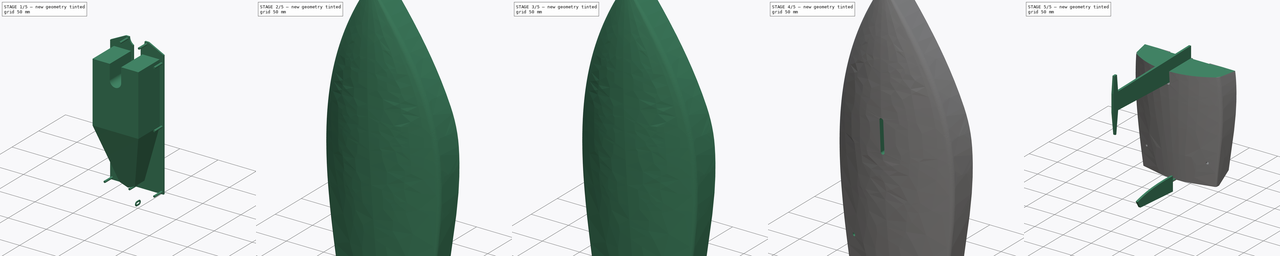
[diagram: build sequence overview — one tinted view per stage of 5, left to right]
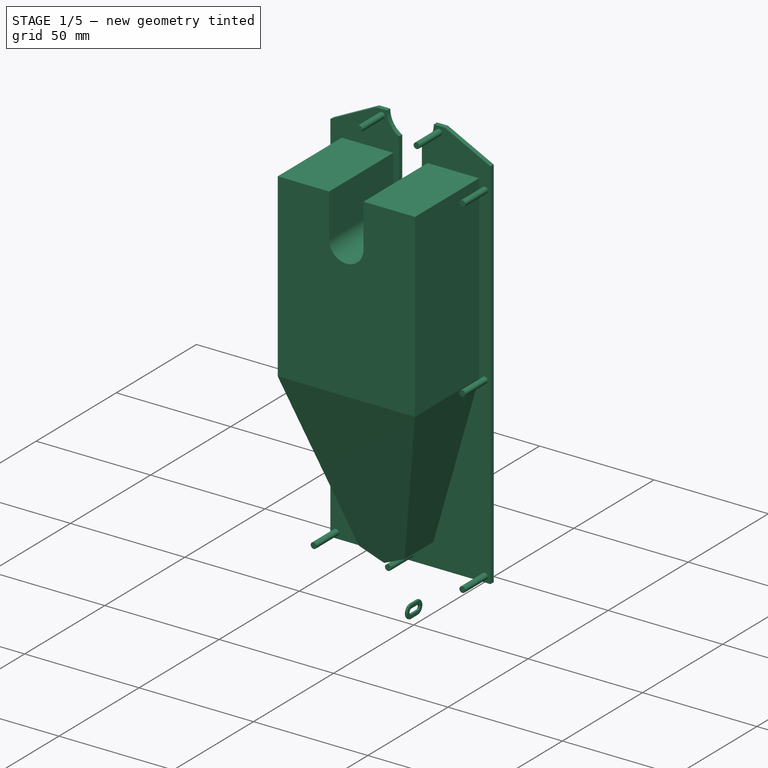
[diagram: stage 1 of 5 — iso view after this stage's code; geometry added in this stage tinted green]
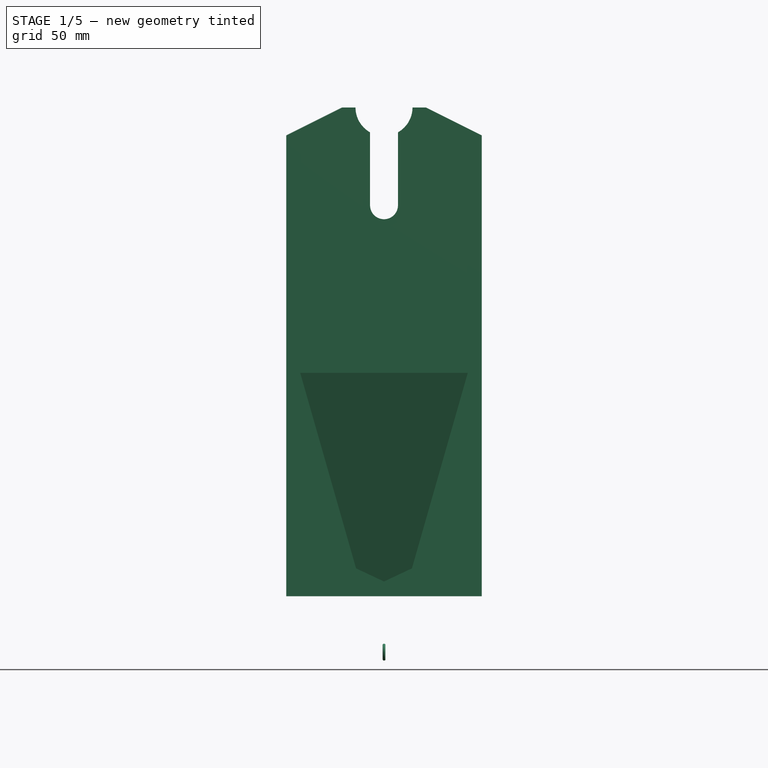
[diagram: stage 1 of 5 — front view after this stage's code; geometry added in this stage tinted green]
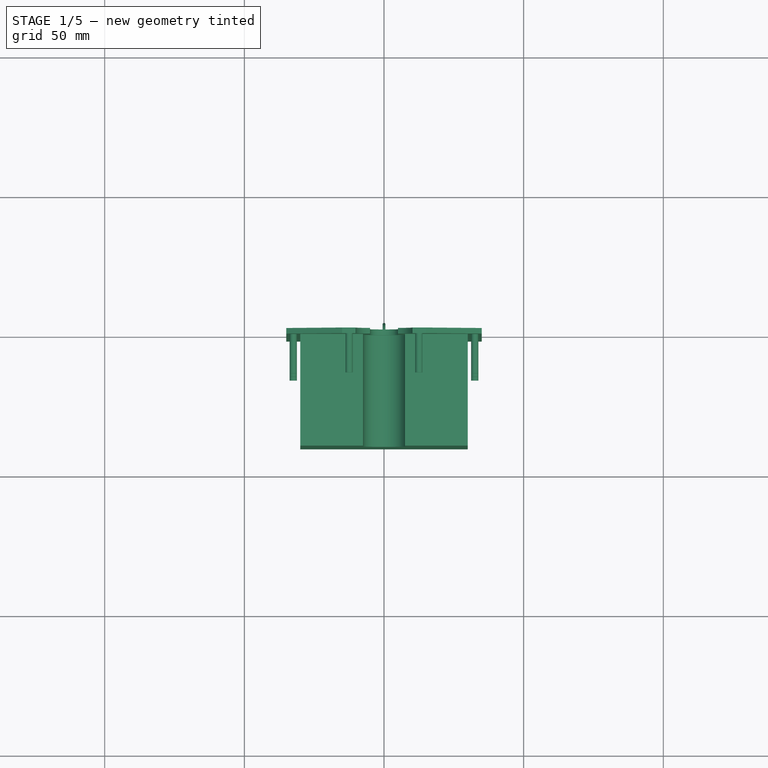
[diagram: stage 1 of 5 — top view after this stage's code; geometry added in this stage tinted green]
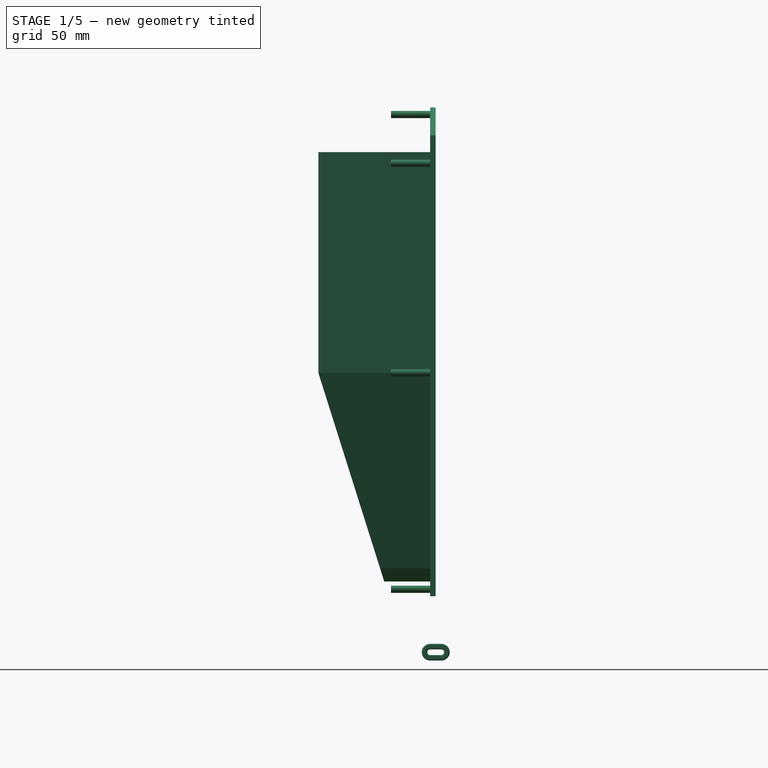
[diagram: stage 1 of 5 — right view after this stage's code; geometry added in this stage tinted green]
FCSTD DOCUMENT  (FreeCAD 0.18R15969 (Git))
Label: Mono360
License: All rights reserved
LicenseURL: http://en.wikipedia.org/wiki/All_rights_reserved
objects: Sketcher::SketchObject×33, PartDesign::Pad×14, PartDesign::Body×14, App::Part×10, PartDesign::Fillet×8, Surface::GeomFillSurface×7, Part::Feature×7, PartDesign::Pocket×5, Spreadsheet::Sheet×1, PartDesign::AdditiveLoft×1, PartDesign::Boolean×1
note: 110 computed .brp shape members not serialized (recipe doc carries the construction recipe); baked Part::Feature solids carry a one-line shape summary decoded from their .brp

FEATURE [PartDesign::Body] Body011  label="Mast_Base"
  Group = -> [Sketch021,Pad013,Sketch022,Pad014]
  Origin = -> Origin011
  Tip = -> Pad014
FEATURE [Sketcher::SketchObject] Sketch024
  AttachmentOffset = pos=(0,0,10) rot=(0,0,1;0rad)
  MapMode = 5
  Placement = pos=(0,10,2.2e-15) rot=(0,0.707107,0.707107;3.14159rad)
  Support = -> [XZ_Plane012]
  sketch-geometry (9):
    g0: LineSegment [constr] StartX=0 StartY=195 StartZ=0 EndX=-23.7945 EndY=36.7792 EndZ=0
    g1: LineSegment [constr] StartX=0 StartY=195 StartZ=0 EndX=-29.5164 EndY=170.233 EndZ=0
    g2: LineSegment [constr] StartX=-29.5164 StartY=170.233 StartZ=0 EndX=-23.7945 EndY=36.7792 EndZ=0
    g3: Circle [constr] CenterX=0 CenterY=195 CenterZ=0 NormalX=0 NormalY=0 NormalZ=1 AngleXU=0 Radius=6
    g4: Circle [constr] CenterX=-29.5164 CenterY=170.233 CenterZ=0 NormalX=0 NormalY=0 NormalZ=1 AngleXU=0 Radius=6
    g5: Circle [constr] CenterX=-23.7945 CenterY=36.7792 CenterZ=0 NormalX=0 NormalY=0 NormalZ=1 AngleXU=0 Radius=6
    g6: BSplineCurve PolesCount=3 KnotsCount=2 Degree=2 IsPeriodic=0
    g7: GeomPoint [constr] X=0 Y=195 Z=0
    g8: GeomPoint [constr] X=-23.7945 Y=36.7792 Z=0
  constraints (18):
    c: PointOnObject(g0,g-2)
    c: DistanceY(g-1,g0) = 195
    c: Distance(g0) = 160
    c: Angle(g1,g-2) = 0.872665
    c: Coincident(g1,g0)
    c: Coincident(g2,g1)
    c: Coincident(g2,g0)
    c: Coincident(g6,g1)
    c: Radius(g3) = 6
    c: Equal(g3,g4)
    c: Coincident(g4,g1)
    c: Equal(g3,g5)
    c: Coincident(g6,g2)
    c: InternalAlignment(g3,g6)
    c: InternalAlignment(g4,g6)
    c: InternalAlignment(g5,g6)
    c: InternalAlignment(g7,g6)
    c: InternalAlignment(g8,g6)
FEATURE [Sketcher::SketchObject] Sketch025
  AttachmentOffset = pos=(0,0,100) rot=(0,0,1;0rad)
  MapMode = 5
  Placement = pos=(0,100,2.22e-14) rot=(0,0.707107,0.707107;3.14159rad)
  Support = -> [XZ_Plane012]
  sketch-geometry (9):
    g0: LineSegment [constr] StartX=0 StartY=195 StartZ=0 EndX=-31.8349 EndY=48.4171 EndZ=0
    g1: LineSegment [constr] StartX=0 StartY=195 StartZ=0 EndX=-29.9005 EndY=174.063 EndZ=0
    g2: LineSegment [constr] StartX=-29.9005 StartY=174.063 StartZ=0 EndX=-31.8349 EndY=48.4171 EndZ=0
    g3: Circle [constr] CenterX=0 CenterY=195 CenterZ=0 NormalX=0 NormalY=0 NormalZ=1 AngleXU=0 Radius=6
    g4: Circle [constr] CenterX=-29.9005 CenterY=174.063 CenterZ=0 NormalX=0 NormalY=0 NormalZ=1 AngleXU=0 Radius=6
    g5: Circle [constr] CenterX=-31.8349 CenterY=48.4171 CenterZ=0 NormalX=0 NormalY=0 NormalZ=1 AngleXU=0 Radius=6
    g6: BSplineCurve PolesCount=3 KnotsCount=2 Degree=2 IsPeriodic=0
    g7: GeomPoint [constr] X=0 Y=195 Z=0
    g8: GeomPoint [constr] X=-31.8349 Y=48.4171 Z=0
  constraints (18):
    c: PointOnObject(g0,g-2)
    c: DistanceY(g-1,g0) = 195
    c: Distance(g0) = 150
    c: Angle(g1,g-2) = 0.959931
    c: Coincident(g1,g0)
    c: Coincident(g2,g1)
    c: Coincident(g2,g0)
    c: Coincident(g6,g1)
    c: Radius(g3) = 6
    c: Equal(g3,g4)
    c: Coincident(g4,g1)
    c: Equal(g3,g5)
    c: Coincident(g6,g2)
    c: InternalAlignment(g3,g6)
    c: InternalAlignment(g4,g6)
    c: InternalAlignment(g5,g6)
    c: InternalAlignment(g7,g6)
    c: InternalAlignment(g8,g6)
FEATURE [Sketcher::SketchObject] Sketch026
  AttachmentOffset = pos=(0,0,190) rot=(0,0,1;0rad)
  MapMode = 5
  Placement = pos=(0,190,4.22e-14) rot=(0,0.707107,0.707107;3.14159rad)
  Support = -> [XZ_Plane012]
  sketch-geometry (9):
    g0: LineSegment [constr] StartX=0 StartY=195 StartZ=0 EndX=-39.2858 EndY=71.0782 EndZ=0
    g1: LineSegment [constr] StartX=0 StartY=195 StartZ=0 EndX=-30.4163 EndY=177.439 EndZ=0
    g2: LineSegment [constr] StartX=-30.4163 StartY=177.439 StartZ=0 EndX=-39.2858 EndY=71.0782 EndZ=0
    g3: Circle [constr] CenterX=0 CenterY=195 CenterZ=0 NormalX=0 NormalY=0 NormalZ=1 AngleXU=0 Radius=6
    g4: Circle [constr] CenterX=-30.4163 CenterY=177.439 CenterZ=0 NormalX=0 NormalY=0 NormalZ=1 AngleXU=0 Radius=6
    g5: Circle [constr] CenterX=-39.2858 CenterY=71.0782 CenterZ=0 NormalX=0 NormalY=0 NormalZ=1 AngleXU=0 Radius=6
    g6: BSplineCurve PolesCount=3 KnotsCount=2 Degree=2 IsPeriodic=0
    g7: GeomPoint [constr] X=0 Y=195 Z=0
    g8: GeomPoint [constr] X=-39.2858 Y=71.0782 Z=0
  constraints (18):
    c: PointOnObject(g0,g-2)
    c: DistanceY(g-1,g0) = 195
    c: Distance(g0) = 130
    c: Angle(g1,g-2) = 1.0472
    c: Coincident(g1,g0)
    c: Coincident(g2,g1)
    c: Coincident(g2,g0)
    c: Coincident(g6,g1)
    c: Radius(g3) = 6
    c: Equal(g3,g4)
    c: Coincident(g4,g1)
    c: Equal(g3,g5)
    c: Coincident(g6,g2)
    c: InternalAlignment(g3,g6)
    c: InternalAlignment(g4,g6)
    c: InternalAlignment(g5,g6)
    c: InternalAlignment(g7,g6)
    c: InternalAlignment(g8,g6)
FEATURE [Sketcher::SketchObject] Sketch027
  AttachmentOffset = pos=(0,0,280) rot=(0,0,1;0rad)
  MapMode = 5
  Placement = pos=(0,280,6.22e-14) rot=(0,0.707107,0.707107;3.14159rad)
  Support = -> [XZ_Plane012]
  sketch-geometry (9):
    g0: LineSegment [constr] StartX=0 StartY=195 StartZ=0 EndX=-42.8353 EndY=104.639 EndZ=0
    g1: LineSegment [constr] StartX=0 StartY=195 StartZ=0 EndX=-22.7383 EndY=184.397 EndZ=0
    g2: LineSegment [constr] StartX=-22.7383 StartY=184.397 StartZ=0 EndX=-42.8353 EndY=104.639 EndZ=0
    g3: Circle [constr] CenterX=0 CenterY=195 CenterZ=0 NormalX=0 NormalY=0 NormalZ=1 AngleXU=0 Radius=6
    g4: Circle [constr] CenterX=-22.7383 CenterY=184.397 CenterZ=0 NormalX=0 NormalY=0 NormalZ=1 AngleXU=0 Radius=6
    g5: Circle [constr] CenterX=-42.8353 CenterY=104.639 CenterZ=0 NormalX=0 NormalY=0 NormalZ=1 AngleXU=0 Radius=6
    g6: BSplineCurve PolesCount=3 KnotsCount=2 Degree=2 IsPeriodic=0
    g7: GeomPoint [constr] X=0 Y=195 Z=0
    g8: GeomPoint [constr] X=-42.8353 Y=104.639 Z=0
  constraints (18):
    c: PointOnObject(g0,g-2)
    c: DistanceY(g-1,g0) = 195
    c: Distance(g0) = 100
    c: Angle(g1,g-2) = 1.13446
    c: Coincident(g1,g0)
    c: Coincident(g2,g1)
    c: Coincident(g2,g0)
    c: Coincident(g6,g1)
    c: Radius(g3) = 6
    c: Equal(g3,g4)
    c: Coincident(g4,g1)
    c: Equal(g3,g5)
    c: Coincident(g6,g2)
    c: InternalAlignment(g3,g6)
    c: InternalAlignment(g4,g6)
    c: InternalAlignment(g5,g6)
    c: InternalAlignment(g7,g6)
    c: InternalAlignment(g8,g6)
FEATURE [Sketcher::SketchObject] Sketch028
  AttachmentOffset = pos=(0,0,370) rot=(0,0,1;0rad)
  MapMode = 5
  Placement = pos=(0,370,8.22e-14) rot=(0,0.707107,0.707107;3.14159rad)
  Support = -> [XZ_Plane012]
  sketch-geometry (9):
    g0: LineSegment [constr] StartX=0 StartY=195 StartZ=0 EndX=-34.0541 EndY=145.6 EndZ=0
    g1: LineSegment [constr] StartX=0 StartY=195 StartZ=0 EndX=-21.0343 EndY=187.344 EndZ=0
    g2: LineSegment [constr] StartX=-21.0343 StartY=187.344 StartZ=0 EndX=-34.0541 EndY=145.6 EndZ=0
    g3: Circle [constr] CenterX=0 CenterY=195 CenterZ=0 NormalX=0 NormalY=0 NormalZ=1 AngleXU=0 Radius=6
    g4: Circle [constr] CenterX=-21.0343 CenterY=187.344 CenterZ=0 NormalX=0 NormalY=0 NormalZ=1 AngleXU=0 Radius=6
    g5: Circle [constr] CenterX=-34.0541 CenterY=145.6 CenterZ=0 NormalX=0 NormalY=0 NormalZ=1 AngleXU=0 Radius=6
    g6: BSplineCurve PolesCount=3 KnotsCount=2 Degree=2 IsPeriodic=0
    g7: GeomPoint [constr] X=0 Y=195 Z=0
    g8: GeomPoint [constr] X=-34.0541 Y=145.6 Z=0
  constraints (18):
    c: PointOnObject(g0,g-2)
    c: DistanceY(g-1,g0) = 195
    c: Distance(g0) = 60
    c: Angle(g1,g-2) = 1.22173
    c: Coincident(g1,g0)
    c: Coincident(g2,g1)
    c: Coincident(g2,g0)
    c: Coincident(g6,g1)
    c: Radius(g3) = 6
    c: Equal(g3,g4)
    c: Coincident(g4,g1)
    c: Equal(g3,g5)
    c: Coincident(g6,g2)
    c: InternalAlignment(g3,g6)
    c: InternalAlignment(g4,g6)
    c: InternalAlignment(g5,g6)
    c: InternalAlignment(g7,g6)
    c: InternalAlignment(g8,g6)
FEATURE [PartDesign::Body] Body012  label="Mainsail"
  Group = -> [Sketch024,Sketch025,Sketch026,Sketch027,Sketch028]
  Origin = -> Origin012
FEATURE [Surface::GeomFillSurface] Surface
  BoundaryList = -> [Sketch024,Sketch025]
  FillType = 0
FEATURE [Surface::GeomFillSurface] Surface001
  BoundaryList = -> [Surface,Sketch026]
  FillType = 0
FEATURE [Surface::GeomFillSurface] Surface002
  BoundaryList = -> [Surface001,Sketch027]
  FillType = 0
FEATURE [Surface::GeomFillSurface] Surface003
  BoundaryList = -> [Sketch027,Sketch028]
  FillType = 0
FEATURE [Sketcher::SketchObject] Sketch029
  AttachmentOffset = pos=(0,0,45) rot=(1,0,0;-0.174533rad)
  MapMode = 5
  Placement = pos=(0,45,1e-14) rot=(0,-0.642788,-0.766044;3.14159rad)
  Support = -> [XZ_Plane013]
  sketch-geometry (11):
    g0: LineSegment [constr] StartX=0 StartY=0 StartZ=0 EndX=0 EndY=300 EndZ=0
    g1: LineSegment [constr] StartX=0 StartY=300 StartZ=0 EndX=10.7195 EndY=328.02 EndZ=0
    g2: LineSegment [constr] StartX=0 StartY=300 StartZ=0 EndX=-35.7315 EndY=206.602 EndZ=0
    g3: LineSegment [constr] StartX=-35.7315 StartY=206.602 StartZ=0 EndX=-18.801 EndY=303.249 EndZ=0
    g4: LineSegment [constr] StartX=-18.801 StartY=303.249 StartZ=0 EndX=10.7195 EndY=328.02 EndZ=0
    g5: Circle [constr] CenterX=10.7195 CenterY=328.02 CenterZ=0 NormalX=0 NormalY=0 NormalZ=1 AngleXU=0 Radius=6
    g6: Circle [constr] CenterX=-18.801 CenterY=303.249 CenterZ=0 NormalX=0 NormalY=0 NormalZ=1 AngleXU=0 Radius=6
    g7: Circle [constr] CenterX=-35.7315 CenterY=206.602 CenterZ=0 NormalX=0 NormalY=0 NormalZ=1 AngleXU=0 Radius=6
    g8: BSplineCurve PolesCount=3 KnotsCount=2 Degree=2 IsPeriodic=0
    g9: GeomPoint [constr] X=10.7195 Y=328.02 Z=0
    g10: GeomPoint [constr] X=-35.7315 Y=206.602 Z=0
  constraints (23):
    c: Coincident(g0,g-1)
    c: Vertical(g0)
    c: DistanceY(g0,g0) = 300
    c: Coincident(g1,g0)
    c: Coincident(g2,g1)
    c: Parallel(g1,g2)
    c: Distance(g2) = 100
    c: Distance(g1) = 30
    c: Coincident(g3,g2)
    c: Coincident(g4,g3)
    c: Coincident(g4,g1)
    c: Coincident(g8,g1)
    c: Radius(g5) = 6
    c: Equal(g5,g6)
    c: Coincident(g6,g3)
    c: Equal(g5,g7)
    c: Coincident(g8,g2)
    c: InternalAlignment(g5,g8)
    c: InternalAlignment(g6,g8)
    c: InternalAlignment(g7,g8)
    c: InternalAlignment(g9,g8)
    c: InternalAlignment(g10,g8)
    c: Angle(g4,g-2) = 0.872665
FEATURE [Sketcher::SketchObject] Sketch030
  AttachmentOffset = pos=(0,0,120) rot=(1,0,0;-0.174533rad)
  MapMode = 5
  Placement = pos=(0,120,2.66e-14) rot=(0,-0.642788,-0.766044;3.14159rad)
  Support = -> [XZ_Plane013]
  sketch-geometry (11):
    g0: LineSegment [constr] StartX=0 StartY=0 StartZ=0 EndX=0 EndY=275 EndZ=0
    g1: LineSegment [constr] StartX=0 StartY=275 StartZ=0 EndX=10.0962 EndY=292.265 EndZ=0
    g2: LineSegment [constr] StartX=0 StartY=275 StartZ=0 EndX=-42.9087 EndY=201.625 EndZ=0
    g3: LineSegment [constr] StartX=-42.9087 StartY=201.625 StartZ=0 EndX=-12.7541 EndY=276.265 EndZ=0
    g4: LineSegment [constr] StartX=-12.7541 StartY=276.265 StartZ=0 EndX=10.0962 EndY=292.265 EndZ=0
    g5: Circle [constr] CenterX=10.0962 CenterY=292.265 CenterZ=0 NormalX=0 NormalY=0 NormalZ=1 AngleXU=0 Radius=6
    g6: Circle [constr] CenterX=-12.7541 CenterY=276.265 CenterZ=0 NormalX=0 NormalY=0 NormalZ=1 AngleXU=0 Radius=6
    g7: Circle [constr] CenterX=-42.9087 CenterY=201.625 CenterZ=0 NormalX=0 NormalY=0 NormalZ=1 AngleXU=0 Radius=6
    g8: BSplineCurve PolesCount=3 KnotsCount=2 Degree=2 IsPeriodic=0
    g9: GeomPoint [constr] X=10.0962 Y=292.265 Z=0
    g10: GeomPoint [constr] X=-42.9087 Y=201.625 Z=0
  constraints (23):
    c: Coincident(g0,g-1)
    c: Vertical(g0)
    c: DistanceY(g0,g0) = 275
    c: Coincident(g1,g0)
    c: Coincident(g2,g1)
    c: Parallel(g1,g2)
    c: Distance(g2) = 85
    c: Distance(g1) = 20
    c: Coincident(g3,g2)
    c: Coincident(g4,g3)
    c: Coincident(g4,g1)
    c: Coincident(g8,g1)
    c: Radius(g5) = 6
    c: Equal(g5,g6)
    c: Coincident(g6,g3)
    c: Equal(g5,g7)
    c: Coincident(g8,g2)
    c: InternalAlignment(g5,g8)
    c: InternalAlignment(g6,g8)
    c: InternalAlignment(g7,g8)
    c: InternalAlignment(g9,g8)
    c: InternalAlignment(g10,g8)
    c: Angle(g4,g-2) = 0.959931
FEATURE [Sketcher::SketchObject] Sketch031
  AttachmentOffset = pos=(0,0,190) rot=(1,0,0;-0.174533rad)
  MapMode = 5
  Placement = pos=(0,190,4.22e-14) rot=(0,-0.642788,-0.766044;3.14159rad)
  Support = -> [XZ_Plane013]
  sketch-geometry (11):
    g0: LineSegment [constr] StartX=0 StartY=0 StartZ=0 EndX=0 EndY=250 EndZ=0
    g1: LineSegment [constr] StartX=0 StartY=250 StartZ=0 EndX=5.87569 EndY=258.092 EndZ=0
    g2: LineSegment [constr] StartX=0 StartY=250 StartZ=0 EndX=-36.4293 EndY=199.831 EndZ=0
    g3: LineSegment [constr] StartX=-36.4293 StartY=199.831 StartZ=0 EndX=-13.0777 EndY=247.149 EndZ=0
    g4: LineSegment [constr] StartX=-13.0777 StartY=247.149 StartZ=0 EndX=5.87569 EndY=258.092 EndZ=0
    g5: Circle [constr] CenterX=5.87569 CenterY=258.092 CenterZ=0 NormalX=0 NormalY=0 NormalZ=1 AngleXU=0 Radius=12
    g6: Circle [constr] CenterX=-13.0777 CenterY=247.149 CenterZ=0 NormalX=0 NormalY=0 NormalZ=1 AngleXU=0 Radius=12
    g7: Circle [constr] CenterX=-36.4293 CenterY=199.831 CenterZ=0 NormalX=0 NormalY=0 NormalZ=1 AngleXU=0 Radius=12
    g8: BSplineCurve PolesCount=3 KnotsCount=2 Degree=2 IsPeriodic=0
    g9: GeomPoint [constr] X=5.87569 Y=258.092 Z=0
    g10: GeomPoint [constr] X=-36.4293 Y=199.831 Z=0
  constraints (23):
    c: Coincident(g0,g-1)
    c: Vertical(g0)
    c: DistanceY(g0,g0) = 250
    c: Coincident(g1,g0)
    c: Coincident(g2,g1)
    c: Parallel(g1,g2)
    c: Distance(g2) = 62
    c: Distance(g1) = 10
    c: Coincident(g3,g2)
    c: Coincident(g4,g3)
    c: Coincident(g4,g1)
    c: Coincident(g8,g1)
    c: Radius(g5) = 12
    c: Equal(g5,g6)
    c: Coincident(g6,g3)
    c: Equal(g5,g7)
    c: Coincident(g8,g2)
    c: InternalAlignment(g5,g8)
    c: InternalAlignment(g6,g8)
    c: InternalAlignment(g7,g8)
    c: InternalAlignment(g9,g8)
    c: InternalAlignment(g10,g8)
    c: Angle(g4,g-2) = 1.0472
FEATURE [Sketcher::SketchObject] Sketch032
  AttachmentOffset = pos=(0,0,260) rot=(1,0,0;-0.174533rad)
  MapMode = 5
  Placement = pos=(0,260,5.77e-14) rot=(0,-0.642788,-0.766044;3.14159rad)
  Support = -> [XZ_Plane013]
  sketch-geometry (11):
    g0: LineSegment [constr] StartX=0 StartY=0 StartZ=0 EndX=0 EndY=225 EndZ=0
    g1: LineSegment [constr] StartX=0 StartY=225 StartZ=0 EndX=-0.541774 EndY=224.159 EndZ=0
    g2: LineSegment [constr] StartX=0 StartY=225 StartZ=0 EndX=-16.2532 EndY=199.784 EndZ=0
    g3: LineSegment [constr] StartX=-16.2532 StartY=199.784 StartZ=0 EndX=-8.89161 EndY=220.266 EndZ=0
    g4: LineSegment [constr] StartX=-8.89161 StartY=220.266 StartZ=0 EndX=-0.541774 EndY=224.159 EndZ=0
    g5: Circle [constr] CenterX=-0.541774 CenterY=224.159 CenterZ=0 NormalX=0 NormalY=0 NormalZ=1 AngleXU=0 Radius=6
    g6: Circle [constr] CenterX=-8.89161 CenterY=220.266 CenterZ=0 NormalX=0 NormalY=0 NormalZ=1 AngleXU=0 Radius=6
    g7: Circle [constr] CenterX=-16.2532 CenterY=199.784 CenterZ=0 NormalX=0 NormalY=0 NormalZ=1 AngleXU=0 Radius=6
    g8: BSplineCurve PolesCount=3 KnotsCount=2 Degree=2 IsPeriodic=0
    g9: GeomPoint [constr] X=-0.541774 Y=224.159 Z=0
    g10: GeomPoint [constr] X=-16.2532 Y=199.784 Z=0
  constraints (23):
    c: Coincident(g0,g-1)
    c: Vertical(g0)
    c: DistanceY(g0,g0) = 225
    c: Coincident(g1,g0)
    c: Coincident(g2,g1)
    c: Parallel(g1,g2)
    c: Distance(g2) = 30
    c: Distance(g1) = 1
    c: Coincident(g3,g2)
    c: Coincident(g4,g3)
    c: Coincident(g4,g1)
    c: Coincident(g8,g1)
    c: Radius(g5) = 6
    c: Equal(g5,g6)
    c: Coincident(g6,g3)
    c: Equal(g5,g7)
    c: Coincident(g8,g2)
    c: InternalAlignment(g5,g8)
    c: InternalAlignment(g6,g8)
    c: InternalAlignment(g7,g8)
    c: InternalAlignment(g9,g8)
    c: InternalAlignment(g10,g8)
    c: Angle(g4,g-2) = 1.13446
FEATURE [PartDesign::Body] Body013  label="Jib"
  Group = -> [Sketch029,Sketch030,Sketch031,Sketch032]
  Origin = -> Origin013
FEATURE [Surface::GeomFillSurface] Surface004
  BoundaryList = -> [Sketch029,Sketch030]
  FillType = 0
FEATURE [Surface::GeomFillSurface] Surface005
  BoundaryList = -> [Sketch030,Sketch031]
  FillType = 0
FEATURE [Surface::GeomFillSurface] Surface006
  BoundaryList = -> [Sketch031,Sketch032]
  FillType = 0
FEATURE [Sketcher::SketchObject] Sketch033
  MapMode = 5
  Placement = pos=(0,0,0) rot=(1,0,0;1.5708rad)
  Support = -> [XZ_Plane037]
  sketch-geometry (12):
    g0: LineSegment StartX=-35 StartY=20 StartZ=0 EndX=35 EndY=20 EndZ=0
    g1: LineSegment StartX=35 StartY=20 StartZ=0 EndX=35 EndY=185 EndZ=0
    g2: LineSegment StartX=35 StartY=185 StartZ=0 EndX=15 EndY=195 EndZ=0
    g3: LineSegment StartX=-35 StartY=20 StartZ=0 EndX=-35 EndY=185 EndZ=0
    g4: LineSegment StartX=-35 StartY=185 StartZ=0 EndX=-15 EndY=195 EndZ=0
    g5: LineSegment StartX=-5.00014 StartY=186.11 StartZ=0 EndX=-5.00014 EndY=160.001 EndZ=0
    g6: LineSegment StartX=5.00014 StartY=186.11 StartZ=0 EndX=5.00014 EndY=160 EndZ=0
    g7: ArcOfCircle CenterX=0 CenterY=159.991 CenterZ=0 NormalX=0 NormalY=0 NormalZ=1 AngleXU=0 Radius=5.00015 StartAngle=3.1396 EndAngle=6.28495
    g8: ArcOfCircle CenterX=0 CenterY=195 CenterZ=0 NormalX=0 NormalY=0 NormalZ=1 AngleXU=0 Radius=10.2 StartAngle=3.14156 EndAngle=4.20006
    g9: ArcOfCircle CenterX=0 CenterY=195 CenterZ=0 NormalX=0 NormalY=0 NormalZ=1 AngleXU=0 Radius=10.2 StartAngle=5.22472 EndAngle=6.28319
    g10: LineSegment StartX=-10.2 StartY=195 StartZ=0 EndX=-15 EndY=195 EndZ=0
    g11: LineSegment StartX=15 StartY=195 StartZ=0 EndX=10.2 EndY=195 EndZ=0
  constraints (25):
    c: Horizontal(g0)
    c: Coincident(g0,g1)
    c: Vertical(g1)
    c: Coincident(g1,g2)
    c: Coincident(g0,g3)
    c: Vertical(g3)
    c: Coincident(g3,g4)
    c: Vertical(g5)
    c: Vertical(g6)
    c: PointOnObject(g7,g-2)
    c: Coincident(g7,g5)
    c: Coincident(g7,g6)
    c: Coincident(g9,g8)
    c: Radius(g8) = 10.2
    c: DistanceX(g8) = 0
    c: DistanceY(g8) = 195
    c: Coincident(g8,g5)
    c: Coincident(g9,g6)
    c: Equal(g9,g8)
    c: Coincident(g10,g8)
    c: Coincident(g10,g4)
    c: Horizontal(g10)
    c: Coincident(g11,g2)
    c: Coincident(g11,g9)
    c: Horizontal(g11)
FEATURE [PartDesign::Pad] Pad015
  Length = 2
  Length2 = 100
  Placement = pos=(0,0,0) rot=(1,0,0;1.5708rad)
  Profile = -> Sketch033
  Type = 0
FEATURE [Sketcher::SketchObject] Sketch034
  MapMode = 5
  Placement = pos=(0,-2,9e-16) rot=(1,0,0;1.5708rad)
  Support = -> [Pad015]
  sketch-geometry (12):
    g0: LineSegment StartX=-30 StartY=100 StartZ=0 EndX=-10 EndY=30 EndZ=0
    g1: LineSegment StartX=-10 StartY=30 StartZ=0 EndX=0 EndY=25.2996 EndZ=0
    g2: LineSegment StartX=0 StartY=25.2996 StartZ=0 EndX=10 EndY=30 EndZ=0
    g3: LineSegment StartX=10 StartY=30 StartZ=0 EndX=30 EndY=100 EndZ=0
    g4: LineSegment StartX=30 StartY=100 StartZ=0 EndX=30 EndY=179 EndZ=0
    g5: LineSegment StartX=30 StartY=179 StartZ=0 EndX=7.5 EndY=179 EndZ=0
    g6: LineSegment StartX=7.5 StartY=179 StartZ=0 EndX=7.5 EndY=160 EndZ=0
    g7: LineSegment StartX=-30 StartY=100 StartZ=0 EndX=-30 EndY=179 EndZ=0
    g8: LineSegment StartX=-30 StartY=179 StartZ=0 EndX=-7.5 EndY=179 EndZ=0
    g9: LineSegment StartX=-7.5 StartY=179 StartZ=0 EndX=-7.5 EndY=160 EndZ=0
    g10: ArcOfCircle CenterX=1.8e-14 CenterY=160 CenterZ=0 NormalX=0 NormalY=0 NormalZ=1 AngleXU=0 Radius=7.5 StartAngle=3.14159 EndAngle=6.28319
    g11: LineSegment [constr] StartX=-7.5 StartY=179 StartZ=0 EndX=7.5 EndY=179 EndZ=0
  constraints (21):
    c: Coincident(g0,g1)
    c: Coincident(g1,g2)
    c: Coincident(g2,g3)
    c: Coincident(g3,g4)
    c: Vertical(g4)
    c: Coincident(g4,g5)
    c: Horizontal(g5)
    c: Coincident(g5,g6)
    c: Vertical(g6)
    c: Coincident(g0,g7)
    c: Vertical(g7)
    c: Coincident(g7,g8)
    c: Horizontal(g8)
    c: Coincident(g8,g9)
    c: Vertical(g9)
    c: Coincident(g10,g9)
    c: Coincident(g10,g6)
    c: DistanceY(g-1,g8) = 179
    c: Coincident(g11,g8)
    c: Coincident(g11,g5)
    c: Horizontal(g11)
FEATURE [PartDesign::Pad] Pad016
  BaseFeature = -> Pad015
  Length = 40
  Length2 = 100
  Placement = pos=(0,0,0) rot=(1,0,0;1.5708rad)
  Profile = -> Sketch034
  Type = 0
FEATURE [Sketcher::SketchObject] Sketch035
  MapMode = 5
  Placement = pos=(30,0,0) rot=(0.707107,0,0.707107;3.14159rad)
  Support = -> [Pad016]
  sketch-geometry (3):
    g0: LineSegment StartX=100 StartY=42 StartZ=0 EndX=24 EndY=18 EndZ=0
    g1: LineSegment StartX=24 StartY=18 StartZ=0 EndX=24 EndY=42 EndZ=0
    g2: LineSegment StartX=24 StartY=42 StartZ=0 EndX=100 EndY=42 EndZ=0
  constraints (4):
    c: Coincident(g0,g1)
    c: Vertical(g1)
    c: Coincident(g1,g2)
    c: Horizontal(g2)
FEATURE [PartDesign::Pocket] Pocket002
  BaseFeature = -> Pad016
  Length = 5
  Length2 = 100
  Placement = pos=(0,0,0) rot=(1,0,0;1.5708rad)
  Profile = -> Sketch035
  Type = 1
FEATURE [Sketcher::SketchObject] Sketch038
  MapMode = 5
  Placement = pos=(0,0,0) rot=(0.57735,0.57735,0.57735;2.0944rad)
  Support = -> [YZ_Plane039]
  sketch-geometry (8):
    g0: ArcOfCircle CenterX=-2 CenterY=0 CenterZ=0 NormalX=0 NormalY=0 NormalZ=1 AngleXU=0 Radius=1 StartAngle=1.5708 EndAngle=4.71239
    g1: ArcOfCircle CenterX=2 CenterY=0 CenterZ=0 NormalX=0 NormalY=0 NormalZ=1 AngleXU=0 Radius=1 StartAngle=4.71239 EndAngle=7.85398
    g2: LineSegment StartX=-2 StartY=-1 StartZ=0 EndX=2 EndY=-1 EndZ=0
    g3: LineSegment StartX=-2 StartY=1 StartZ=0 EndX=2 EndY=1 EndZ=0
    g4: ArcOfCircle CenterX=-2 CenterY=0 CenterZ=0 NormalX=0 NormalY=0 NormalZ=1 AngleXU=0 Radius=3 StartAngle=1.5708 EndAngle=4.71239
    g5: ArcOfCircle CenterX=2 CenterY=0 CenterZ=0 NormalX=0 NormalY=0 NormalZ=1 AngleXU=0 Radius=3 StartAngle=4.71239 EndAngle=7.85398
    g6: LineSegment StartX=-2 StartY=-3 StartZ=0 EndX=2 EndY=-3 EndZ=0
    g7: LineSegment StartX=-2 StartY=3 StartZ=0 EndX=2 EndY=3 EndZ=0
  constraints (18):
    c: Tangent(g0,g3) = 1.5708
    c: Tangent(g0,g2) = -1.5708
    c: Tangent(g2,g1) = -1.5708
    c: Tangent(g3,g1) = 1.5708
    c: Equal(g0,g1)
    c: PointOnObject(g0,g-1)
    c: Radius(g0) = 1
    c: Tangent(g4,g7) = 1.5708
    c: Tangent(g4,g6) = -1.5708
    c: Tangent(g6,g5) = -1.5708
    c: Tangent(g7,g5) = 1.5708
    c: Horizontal(g6)
    c: Equal(g4,g5)
    c: Coincident(g4,g0)
    c: Coincident(g5,g1)
    c: DistanceX(g0,g-1) = 2
    c: Radius(g4) = 3
    c: DistanceX(g-1,g1) = 2
FEATURE [PartDesign::Pad] Pad017
  Length = 1
  Length2 = 100
  Midplane = true
  Placement = pos=(0,0,0) rot=(0.57735,0.57735,0.57735;2.0944rad)
  Profile = -> Sketch038
  Type = 0
FEATURE [PartDesign::Fillet] Fillet008
  Base = -> Pad017 [Face5,Face2]
  BaseFeature = -> Pad017
  Placement = pos=(0,0,0) rot=(0.57735,0.57735,0.57735;2.0944rad)
  Radius = 0.4
FEATURE [PartDesign::Body] Body015  label="Hook_Nose001"
  Group = -> [Sketch038,Pad017,Fillet008]
  Origin = -> Origin039
  Placement = pos=(0,-22,339) rot=(1,0,0;0.174533rad)
  Tip = -> Fillet008
FEATURE [Sketcher::SketchObject] Sketch039
  MapMode = 5
  Placement = pos=(0,-2,9e-16) rot=(1,0,0;1.5708rad)
  Support = -> [Pocket002]
  sketch-geometry (9):
    g0: Circle CenterX=-32.5 CenterY=22.5 CenterZ=0 NormalX=0 NormalY=0 NormalZ=1 AngleXU=0 Radius=1.3
    g1: Circle CenterX=32.5 CenterY=22.5 CenterZ=0 NormalX=0 NormalY=0 NormalZ=1 AngleXU=0 Radius=1.3
    g2: Circle CenterX=0 CenterY=22.5 CenterZ=0 NormalX=0 NormalY=0 NormalZ=1 AngleXU=0 Radius=1.3
    g3: Circle CenterX=-32.5 CenterY=100 CenterZ=0 NormalX=0 NormalY=0 NormalZ=1 AngleXU=0 Radius=1.3
    g4: Circle CenterX=32.5 CenterY=100 CenterZ=0 NormalX=0 NormalY=0 NormalZ=1 AngleXU=0 Radius=1.3
    g5: Circle CenterX=32.5 CenterY=175 CenterZ=0 NormalX=0 NormalY=0 NormalZ=1 AngleXU=0 Radius=1.3
    g6: Circle CenterX=-32.5 CenterY=175 CenterZ=0 NormalX=0 NormalY=0 NormalZ=1 AngleXU=0 Radius=1.3
    g7: Circle CenterX=-12.5 CenterY=192.5 CenterZ=0 NormalX=0 NormalY=0 NormalZ=1 AngleXU=0 Radius=1.3
    g8: Circle CenterX=12.5 CenterY=192.5 CenterZ=0 NormalX=0 NormalY=0 NormalZ=1 AngleXU=0 Radius=1.3
  constraints (9):
    c: Diameter(g0) = 2.6
    c: Equal(g0,g2)
    c: Equal(g0,g1)
    c: Equal(g0,g4)
    c: Equal(g0,g3)
    c: Equal(g0,g6)
    c: Equal(g0,g7)
    c: Equal(g0,g8)
    c: Equal(g0,g5)
FEATURE [PartDesign::Pad] Pad018
  BaseFeature = -> Pocket002
  Length = 14
  Length2 = 100
  Placement = pos=(0,0,0) rot=(1,0,0;1.5708rad)
  Profile = -> Sketch039
  Type = 0
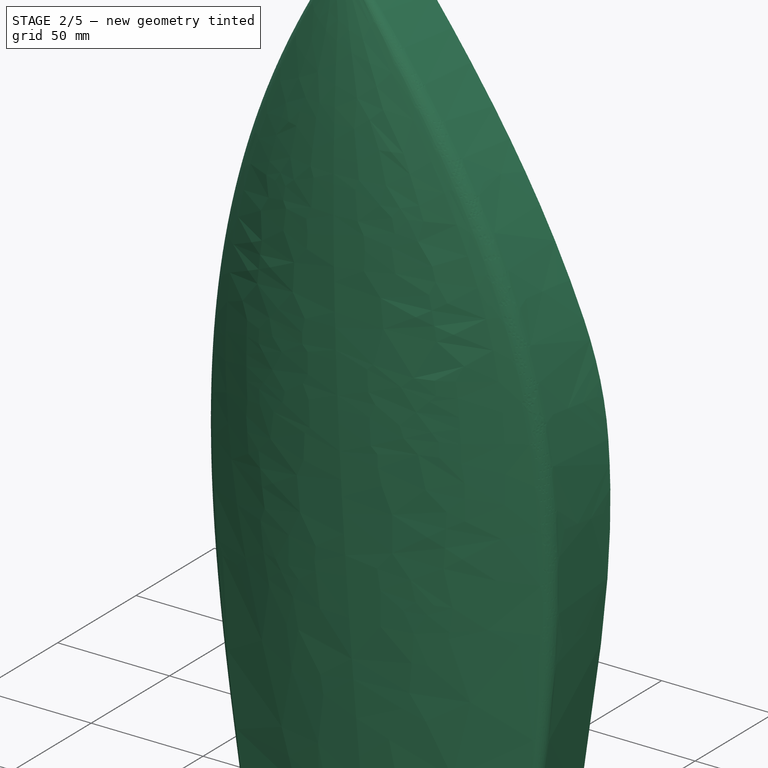
[diagram: stage 2 of 5 — iso view after this stage's code; geometry added in this stage tinted green]
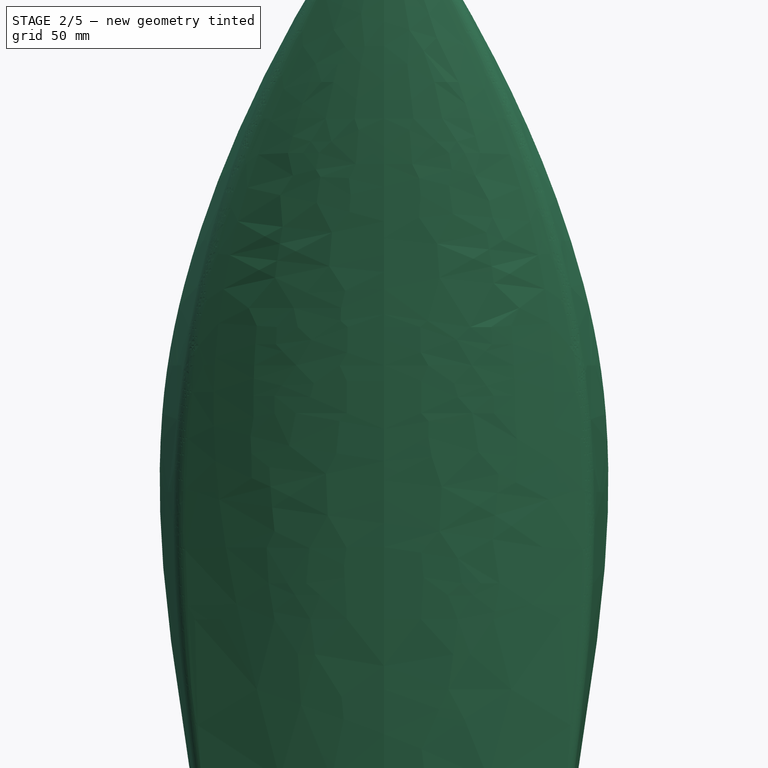
[diagram: stage 2 of 5 — front view after this stage's code; geometry added in this stage tinted green]
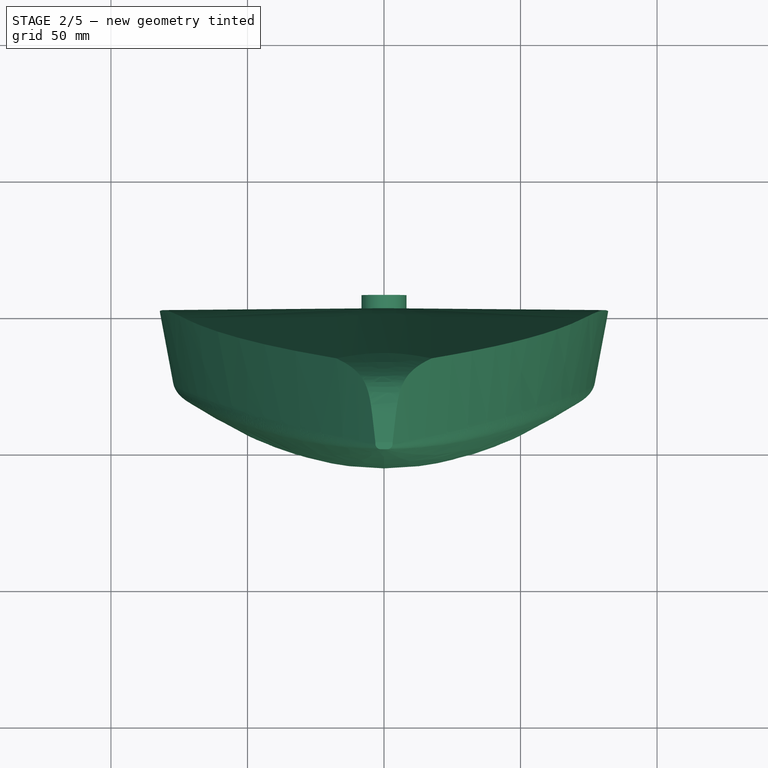
[diagram: stage 2 of 5 — top view after this stage's code; geometry added in this stage tinted green]
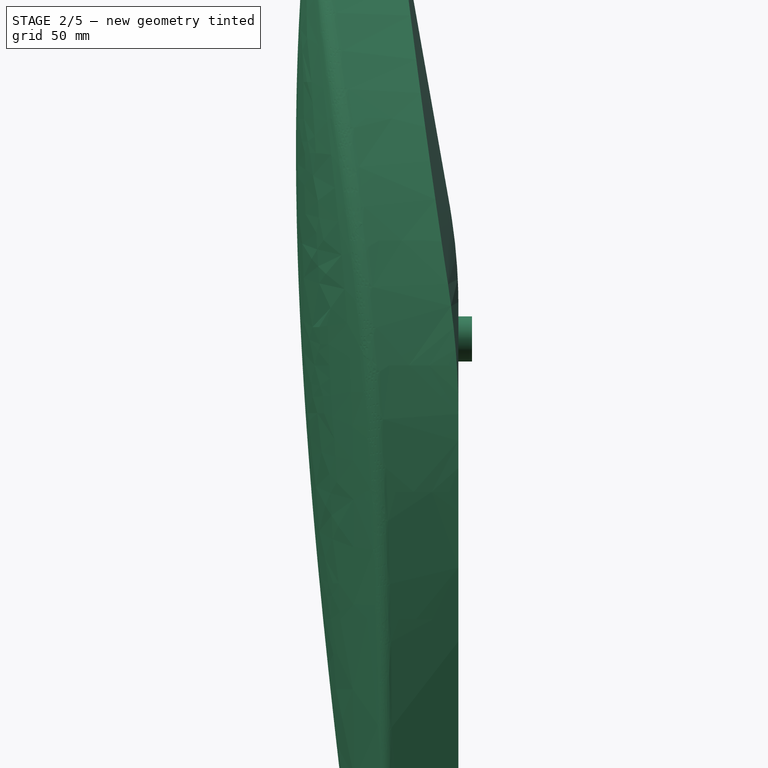
[diagram: stage 2 of 5 — right view after this stage's code; geometry added in this stage tinted green]
FEATURE [Spreadsheet::Sheet] Spreadsheet  label="hull"
FEATURE [Sketcher::SketchObject] Sketch  label="F0"
  MapMode = 5
  Support = -> [XY_Plane]
  sketch-geometry (11):
    g0: LineSegment StartX=0 StartY=0 StartZ=0 EndX=-66.331 EndY=0 EndZ=0
    g1: LineSegment StartX=0 StartY=0 StartZ=0 EndX=66.331 EndY=0 EndZ=0
    g2: LineSegment StartX=-66.331 StartY=0 StartZ=0 EndX=-65 EndY=-24.523 EndZ=0
    g3: LineSegment StartX=66.331 StartY=0 StartZ=0 EndX=65 EndY=-24.523 EndZ=0
    g4: LineSegment StartX=-62.735 StartY=-27.2701 StartZ=0 EndX=-30.8406 EndY=-35.2786 EndZ=0
    g5: LineSegment StartX=30.8406 StartY=-35.2786 StartZ=0 EndX=62.735 EndY=-27.2701 EndZ=0
    g6: LineSegment [constr] StartX=0 StartY=0 StartZ=0 EndX=-62.0044 EndY=-24.3604 EndZ=0
    g7: LineSegment [constr] StartX=0 StartY=0 StartZ=0 EndX=62.0044 EndY=-24.3604 EndZ=0
    g8: ArcOfCircle CenterX=-62.0044 CenterY=-24.3604 CenterZ=0 NormalX=0 NormalY=0 NormalZ=1 AngleXU=0 Radius=3 StartAngle=3.19581 EndAngle=4.46638
    g9: ArcOfCircle CenterX=62.0044 CenterY=-24.3604 CenterZ=0 NormalX=0 NormalY=0 NormalZ=1 AngleXU=0 Radius=3 StartAngle=4.9584 EndAngle=6.22896
    g10: ArcOfCircle CenterX=0 CenterY=87.5466 CenterZ=0 NormalX=0 NormalY=0 NormalZ=1 AngleXU=0 Radius=126.638 StartAngle=4.46638 EndAngle=4.9584
  constraints (23):
    c: Coincident(g1,g-1)
    c: Coincident(g0,g1)
    c: Equal(g1,g0)
    c: Coincident(g7,g0)
    c: Coincident(g6,g0)
    c: Equal(g6,g7)
    c: Equal(g3,g2)
    c: Tangent(g2,g8) = -1.5708
    c: Tangent(g4,g8) = -1.5708
    c: Tangent(g5,g9) = -1.5708
    c: Tangent(g3,g9) = 1.5708
    c: Coincident(g9,g7)
    c: Coincident(g6,g8)
    c: PointOnObject(g1,g-1)
    c: PointOnObject(g0,g-1)
    c: Radius(g8) = 3
    c: Equal(g8,g9)
    c: Tangent(g4,g10) = -1.5708
    c: Tangent(g5,g10) = -1.5708
    c: PointOnObject(g10,g-2)
    c: DistanceX(g2,g3) = 130
    c: Coincident(g3,g1)
    c: Coincident(g2,g0)
FEATURE [Sketcher::SketchObject] Sketch001  label="F001"
  AttachmentOffset = pos=(0,0,90) rot=(0,0,1;0rad)
  MapMode = 5
  Placement = pos=(0,0,90) rot=(0,0,1;0rad)
  Support = -> [XY_Plane]
  sketch-geometry (11):
    g0: LineSegment StartX=0 StartY=0 StartZ=0 EndX=-78.6895 EndY=0 EndZ=0
    g1: LineSegment StartX=0 StartY=0 StartZ=0 EndX=78.6895 EndY=0 EndZ=0
    g2: LineSegment StartX=-78.6895 StartY=0 StartZ=0 EndX=-75.664 EndY=-24.743 EndZ=0
    g3: LineSegment StartX=78.6895 StartY=0 StartZ=0 EndX=75.664 EndY=-24.743 EndZ=0
    g4: LineSegment StartX=-71.4723 StartY=-30.3277 StartZ=0 EndX=-52.2528 EndY=-38.5616 EndZ=0
    g5: LineSegment StartX=52.2528 StartY=-38.5616 StartZ=0 EndX=71.4723 EndY=-30.3277 EndZ=0
    g6: LineSegment [constr] StartX=0 StartY=0 StartZ=0 EndX=-68.7157 EndY=-23.8933 EndZ=0
    g7: LineSegment [constr] StartX=0 StartY=0 StartZ=0 EndX=68.7157 EndY=-23.8933 EndZ=0
    g8: ArcOfCircle CenterX=-68.7157 CenterY=-23.8933 CenterZ=0 NormalX=0 NormalY=0 NormalZ=1 AngleXU=0 Radius=7 StartAngle=3.26327 EndAngle=4.30763
    g9: ArcOfCircle CenterX=68.7157 CenterY=-23.8933 CenterZ=0 NormalX=0 NormalY=0 NormalZ=1 AngleXU=0 Radius=7 StartAngle=5.11714 EndAngle=6.16151
    g10: ArcOfCircle CenterX=0 CenterY=83.4076 CenterZ=0 NormalX=0 NormalY=0 NormalZ=1 AngleXU=0 Radius=132.691 StartAngle=4.30763 EndAngle=5.11714
  constraints (22):
    c: Coincident(g1,g-1)
    c: Coincident(g0,g1)
    c: Equal(g1,g0)
    c: Coincident(g7,g0)
    c: Coincident(g6,g0)
    c: Equal(g6,g7)
    c: Equal(g3,g2)
    c: Tangent(g2,g8) = -1.5708
    c: Tangent(g4,g8) = -1.5708
    c: Tangent(g5,g9) = -1.5708
    c: Tangent(g3,g9) = 1.5708
    c: Coincident(g9,g7)
    c: Coincident(g6,g8)
    c: PointOnObject(g1,g-1)
    c: PointOnObject(g0,g-1)
    c: Radius(g8) = 7
    c: Equal(g8,g9)
    c: Tangent(g4,g10) = -1.5708
    c: Tangent(g5,g10) = -1.5708
    c: PointOnObject(g10,g-2)
    c: Coincident(g0,g2)
    c: Coincident(g3,g1)
FEATURE [Sketcher::SketchObject] Sketch002  label="F002"
  AttachmentOffset = pos=(0,0,180) rot=(0,0,1;0rad)
  MapMode = 5
  Placement = pos=(0,0,180) rot=(0,0,1;0rad)
  Support = -> [XY_Plane]
  sketch-geometry (11):
    g0: LineSegment StartX=0 StartY=0 StartZ=0 EndX=-80.0215 EndY=0 EndZ=0
    g1: LineSegment StartX=0 StartY=0 StartZ=0 EndX=80.0215 EndY=0 EndZ=0
    g2: LineSegment StartX=-80.0215 StartY=0 StartZ=0 EndX=-74.2882 EndY=-28.507 EndZ=0
    g3: LineSegment StartX=80.0215 StartY=0 StartZ=0 EndX=74.2882 EndY=-28.507 EndZ=0
    g4: LineSegment StartX=-69.6193 StartY=-35.1163 StartZ=0 EndX=-62.2411 EndY=-39.5314 EndZ=0
    g5: LineSegment StartX=62.2411 StartY=-39.5314 StartZ=0 EndX=69.6193 EndY=-35.1163 EndZ=0
    g6: LineSegment [constr] StartX=0 StartY=0 StartZ=0 EndX=-64.4845 EndY=-26.5353 EndZ=0
    g7: LineSegment [constr] StartX=0 StartY=0 StartZ=0 EndX=64.4845 EndY=-26.5353 EndZ=0
    g8: ArcOfCircle CenterX=-64.4845 CenterY=-26.5353 CenterZ=0 NormalX=0 NormalY=0 NormalZ=1 AngleXU=0 Radius=10 StartAngle=3.34007 EndAngle=4.17315
    g9: ArcOfCircle CenterX=64.4845 CenterY=-26.5353 CenterZ=0 NormalX=0 NormalY=0 NormalZ=1 AngleXU=0 Radius=10 StartAngle=5.25163 EndAngle=6.08471
    g10: ArcOfCircle CenterX=0 CenterY=64.4822 CenterZ=0 NormalX=0 NormalY=0 NormalZ=1 AngleXU=0 Radius=121.214 StartAngle=4.17315 EndAngle=5.25163
  constraints (22):
    c: Coincident(g1,g-1)
    c: Coincident(g0,g1)
    c: Equal(g1,g0)
    c: Coincident(g7,g0)
    c: Coincident(g6,g0)
    c: Equal(g6,g7)
    c: Equal(g3,g2)
    c: Tangent(g2,g8) = -1.5708
    c: Tangent(g4,g8) = -1.5708
    c: Tangent(g5,g9) = -1.5708
    c: Tangent(g3,g9) = 1.5708
    c: Coincident(g9,g7)
    c: Coincident(g6,g8)
    c: Radius(g8) = 10
    c: Equal(g8,g9)
    c: Tangent(g4,g10) = -1.5708
    c: Tangent(g5,g10) = -1.5708
    c: PointOnObject(g10,g-2)
    c: Coincident(g0,g2)
    c: PointOnObject(g0,g-1)
    c: Coincident(g1,g3)
    c: PointOnObject(g1,g-1)
FEATURE [Sketcher::SketchObject] Sketch003  label="F003"
  AttachmentOffset = pos=(0,0,270) rot=(0,0,1;0rad)
  MapMode = 5
  Placement = pos=(0,0,270) rot=(0,0,1;0rad)
  Support = -> [XY_Plane]
  sketch-geometry (11):
    g0: LineSegment StartX=0 StartY=0 StartZ=0 EndX=-54.9208 EndY=0 EndZ=0
    g1: LineSegment StartX=0 StartY=0 StartZ=0 EndX=54.9208 EndY=0 EndZ=0
    g2: LineSegment StartX=-54.9208 StartY=0 StartZ=0 EndX=-51.2753 EndY=-38.0005 EndZ=0
    g3: LineSegment StartX=54.9208 StartY=0 StartZ=0 EndX=51.2753 EndY=-38.0005 EndZ=0
    g4: LineSegment StartX=-46.455 StartY=-45.6271 StartZ=0 EndX=-43.389 EndY=-47.4613 EndZ=0
    g5: LineSegment StartX=43.389 StartY=-47.4613 StartZ=0 EndX=46.455 EndY=-45.6271 EndZ=0
    g6: LineSegment [constr] StartX=0 StartY=0 StartZ=0 EndX=-41.321 EndY=-37.0456 EndZ=0
    g7: LineSegment [constr] StartX=0 StartY=0 StartZ=0 EndX=41.321 EndY=-37.0456 EndZ=0
    g8: ArcOfCircle CenterX=-41.321 CenterY=-37.0456 CenterZ=0 NormalX=0 NormalY=0 NormalZ=1 AngleXU=0 Radius=10 StartAngle=3.23723 EndAngle=4.17325
    g9: ArcOfCircle CenterX=41.321 CenterY=-37.0456 CenterZ=0 NormalX=0 NormalY=0 NormalZ=1 AngleXU=0 Radius=10 StartAngle=5.25153 EndAngle=6.18754
    g10: ArcOfCircle CenterX=0 CenterY=25.0639 CenterZ=0 NormalX=0 NormalY=0 NormalZ=1 AngleXU=0 Radius=84.5134 StartAngle=4.17325 EndAngle=5.25153
  constraints (22):
    c: Equal(g1,g0)
    c: Coincident(g7,g0)
    c: Coincident(g6,g0)
    c: Equal(g6,g7)
    c: Tangent(g2,g8) = -1.5708
    c: Tangent(g4,g8) = -1.5708
    c: Tangent(g5,g9) = -1.5708
    c: Tangent(g3,g9) = 1.5708
    c: Coincident(g9,g7)
    c: Coincident(g6,g8)
    c: Radius(g8) = 10
    c: Equal(g8,g9)
    c: Tangent(g4,g10) = -1.5708
    c: Tangent(g5,g10) = -1.5708
    c: PointOnObject(g10,g-2)
    c: Coincident(g1,g0)
    c: Coincident(g2,g0)
    c: Coincident(g3,g1)
    c: PointOnObject(g1,g-1)
    c: Coincident(g0,g-1)
    c: PointOnObject(g0,g-1)
    c: Equal(g3,g2)
FEATURE [Sketcher::SketchObject] Sketch004  label="F004"
  AttachmentOffset = pos=(0,0,360) rot=(0,0,1;0rad)
  MapMode = 5
  Placement = pos=(0,0,360) rot=(0,0,1;0rad)
  Support = -> [XY_Plane]
  sketch-geometry (11):
    g0: LineSegment StartX=0 StartY=0 StartZ=0 EndX=-4.15524 EndY=0 EndZ=0
    g1: LineSegment StartX=0 StartY=0 StartZ=0 EndX=4.15524 EndY=0 EndZ=0
    g2: LineSegment StartX=-4.15524 StartY=0 StartZ=0 EndX=-3.15661 EndY=-52.349 EndZ=0
    g3: LineSegment StartX=4.15524 StartY=0 StartZ=0 EndX=3.15661 EndY=-52.349 EndZ=0
    g4: LineSegment StartX=-1.17268 StartY=-54.3108 StartZ=0 EndX=-0.950298 EndY=-54.3125 EndZ=0
    g5: LineSegment StartX=0.95032 StartY=-54.3125 StartZ=0 EndX=1.17268 EndY=-54.3108 EndZ=0
    g6: LineSegment [constr] StartX=0 StartY=0 StartZ=0 EndX=-1.15697 EndY=-52.3108 EndZ=0
    g7: LineSegment [constr] StartX=0 StartY=0 StartZ=0 EndX=1.15697 EndY=-52.3108 EndZ=0
    g8: ArcOfCircle CenterX=-1.15697 CenterY=-52.3108 CenterZ=0 NormalX=0 NormalY=0 NormalZ=1 AngleXU=0 Radius=2 StartAngle=3.16067 EndAngle=4.70454
    g9: ArcOfCircle CenterX=1.15697 CenterY=-52.3108 CenterZ=0 NormalX=0 NormalY=0 NormalZ=1 AngleXU=0 Radius=2 StartAngle=4.72024 EndAngle=6.26411
    g10: ArcOfCircle CenterX=0 CenterY=66.6831 CenterZ=0 NormalX=0 NormalY=0 NormalZ=1 AngleXU=0 Radius=120.999 StartAngle=4.70454 EndAngle=4.72024
  constraints (21):
    c: Equal(g1,g0)
    c: Coincident(g7,g0)
    c: Coincident(g6,g0)
    c: Equal(g6,g7)
    c: Tangent(g2,g8) = -1.5708
    c: Tangent(g4,g8) = -1.5708
    c: Tangent(g5,g9) = -1.5708
    c: Tangent(g3,g9) = 1.5708
    c: Coincident(g9,g7)
    c: Coincident(g6,g8)
    c: Radius(g8) = 2
    c: Equal(g8,g9)
    c: Tangent(g4,g10) = -1.5708
    c: Tangent(g5,g10) = -1.5708
    c: PointOnObject(g10,g-2)
    c: Coincident(g1,g0)
    c: Coincident(g2,g0)
    c: Coincident(g3,g1)
    c: PointOnObject(g0,g-1)
    c: PointOnObject(g1,g-1)
    c: Coincident(g0,g-1)
FEATURE [PartDesign::AdditiveLoft] AdditiveLoft
  Closed = false
  Profile = -> Sketch
  Ruled = false
  Sections = -> [Sketch001,Sketch002,Sketch003,Sketch004]
FEATURE [Sketcher::SketchObject] Sketch005
  AttachmentOffset = pos=(0,0,0) rot=(1,0,0;0.174533rad)
  MapMode = 5
  Placement = pos=(0,0,0) rot=(1,0,0;3.31613rad)
  Support = -> [AdditiveLoft]
  sketch-geometry (7):
    g0: LineSegment StartX=0 StartY=-40 StartZ=0 EndX=-150 EndY=-26.8767 EndZ=0
    g1: LineSegment StartX=-150 StartY=-26.8767 StartZ=0 EndX=-150 EndY=-200 EndZ=0
    g2: LineSegment StartX=-150 StartY=-200 StartZ=0 EndX=150 EndY=-200 EndZ=0
    g3: LineSegment StartX=150 StartY=-200 StartZ=0 EndX=150 EndY=-26.8767 EndZ=0
    g4: LineSegment StartX=150 StartY=-26.8767 StartZ=0 EndX=0 EndY=-40 EndZ=0
    g5: LineSegment [constr] StartX=0 StartY=-40 StartZ=0 EndX=-150 EndY=-200 EndZ=0
    g6: LineSegment [constr] StartX=0 StartY=-40 StartZ=0 EndX=150 EndY=-200 EndZ=0
  constraints (19):
    c: Coincident(g0,g4)
    c: PointOnObject(g0,g-2)
    c: Coincident(g4,g3)
    c: Coincident(g3,g2)
    c: Coincident(g1,g2)
    c: Coincident(g1,g0)
    c: Coincident(g6,g2)
    c: Coincident(g5,g1)
    c: Horizontal(g2)
    c: Coincident(g6,g5)
    c: Coincident(g5,g0)
    c: Equal(g5,g6)
    c: Vertical(g3)
    c: Vertical(g1)
    c: Equal(g3,g1)
    c: DistanceY(g1,g-1) = 200
    c: DistanceY(g0,g-1) = 40
    c: DistanceX(g1,g2) = 300
    c: Angle(g1,g0) = 1.48353
FEATURE [PartDesign::Pocket] Pocket
  BaseFeature = -> AdditiveLoft
  Length = 5
  Length2 = 100
  Profile = -> Sketch005
  Type = 1
FEATURE [PartDesign::Fillet] Fillet
  Base = -> Pocket [Edge29,Edge11,Edge31]
  BaseFeature = -> Pocket
  Radius = 200
FEATURE [PartDesign::Body] Body009  label="Hook_Right"
  Group = -> [Sketch019,Pad011,Fillet007]
  Origin = -> Origin009
  Placement = pos=(-65,-1,180) rot=(0,0,1;0rad)
  Tip = -> Fillet007
FEATURE [Sketcher::SketchObject] Sketch021
  MapMode = 5
  Placement = pos=(0,0,0) rot=(0,0.707107,0.707107;3.14159rad)
  Support = -> [XZ_Plane011]
  sketch-geometry (1):
    g0: Circle CenterX=0 CenterY=195 CenterZ=0 NormalX=0 NormalY=0 NormalZ=1 AngleXU=0 Radius=8.25
  constraints (3):
    c: PointOnObject(g0,g-2)
    c: DistanceY(g-1,g0) = 195
    c: Radius(g0) = 8.25
FEATURE [PartDesign::Pad] Pad013
  Length = 10
  Length2 = 100
  Midplane = true
  Placement = pos=(0,0,0) rot=(1,0,0;1.5708rad)
  Profile = -> Sketch021
  Type = 0
FEATURE [App::Part] Part001
  Group = -> [Body004,Body005,Body006,Body012,Surface,Surface001,Surface002,Surface003,Body013,Surface004,Surface005,Surface006]
  Origin = -> Origin038
FEATURE [Sketcher::SketchObject] Sketch036
  MapMode = 5
  Placement = pos=(0,0,0) rot=(0.57735,0.57735,0.57735;2.0944rad)
  Support = -> [YZ_Plane]
  sketch-geometry (3):
    g0: LineSegment StartX=-20 StartY=0 StartZ=0 EndX=0 EndY=18 EndZ=0
    g1: LineSegment StartX=0 StartY=18 StartZ=0 EndX=0 EndY=0 EndZ=0
    g2: LineSegment StartX=0 StartY=0 StartZ=0 EndX=-20 EndY=0 EndZ=0
  constraints (8):
    c: PointOnObject(g0,g-1)
    c: PointOnObject(g0,g-2)
    c: Coincident(g0,g1)
    c: Coincident(g1,g-1)
    c: Coincident(g1,g2)
    c: Coincident(g2,g0)
    c: DistanceX(g2,g2) = 20
    c: DistanceY(g1,g1) = 18
FEATURE [Sketcher::SketchObject] Sketch037
  MapMode = 5
  Placement = pos=(0,0,0) rot=(0.57735,0.57735,0.57735;2.0944rad)
  Support = -> [YZ_Plane]
  sketch-geometry (9):
    g0: LineSegment StartX=-53.9975 StartY=360.354 StartZ=0 EndX=-17.3145 EndY=360.354 EndZ=0
    g1: LineSegment StartX=-17.3145 StartY=360.354 StartZ=0 EndX=-17.3145 EndY=326.117 EndZ=0
    g2-g5: Circle [constr] x4 (B-spline internal-alignment scaffolding for g6; pole/knot coordinates omitted)
    g6: BSplineCurve PolesCount=4 KnotsCount=2 Degree=3 IsPeriodic=0
    g7: GeomPoint [constr] X=-53.9975 Y=360.354 Z=0
    g8: GeomPoint [constr] X=-17.3145 Y=326.117 Z=0
  constraints (12):
    c: Horizontal(g0)
    c: Coincident(g1,g0)
    c: Vertical(g1)
    c: Coincident(g6,g0)
    c: Radius(g2) = 3
    c: Equal(g2,g3)
    c: Equal(g2,g4)
    c: Equal(g2,g5)
    c: Coincident(g6,g1)
    c: InternalAlignment(g2-g5 -> g6) x4
    c: InternalAlignment(g7,g6)
    c: InternalAlignment(g8,g6)
FEATURE [PartDesign::Pocket] Pocket003
  BaseFeature = -> Fillet
  Length = 5
  Length2 = 100
  Midplane = true
  Profile = -> Sketch037
  Type = 1
FEATURE [PartDesign::Pocket] Pocket004
  BaseFeature = -> Pocket003
  Length = 5
  Length2 = 100
  Midplane = true
  Profile = -> Sketch036
  Type = 1
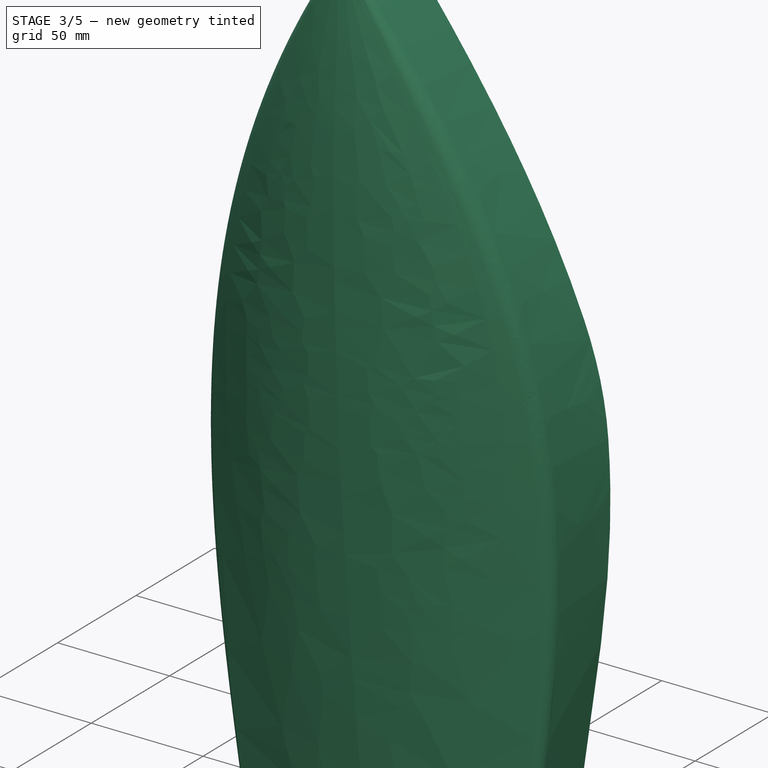
[diagram: stage 3 of 5 — iso view after this stage's code; geometry added in this stage tinted green]
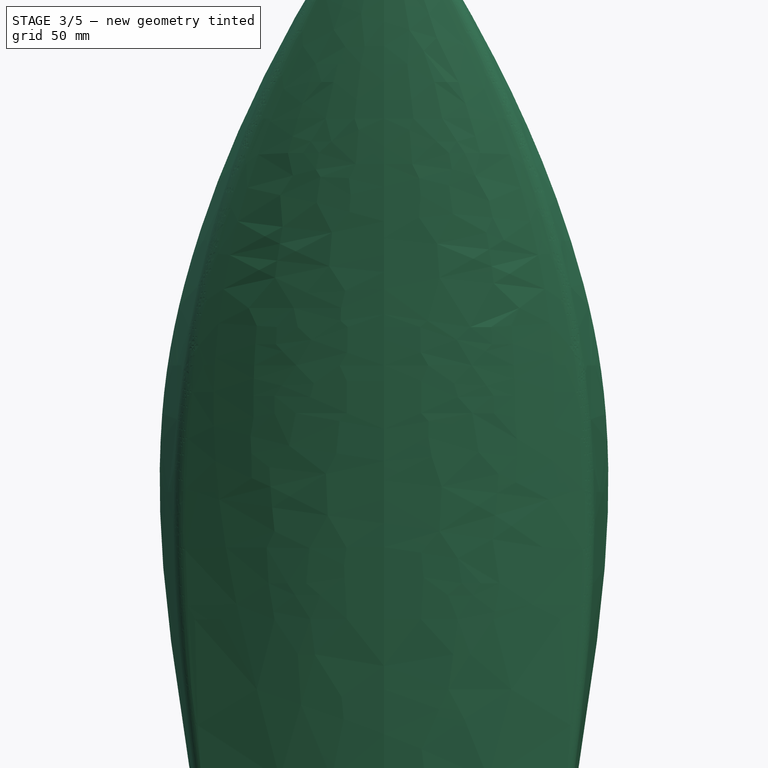
[diagram: stage 3 of 5 — front view after this stage's code; geometry added in this stage tinted green]
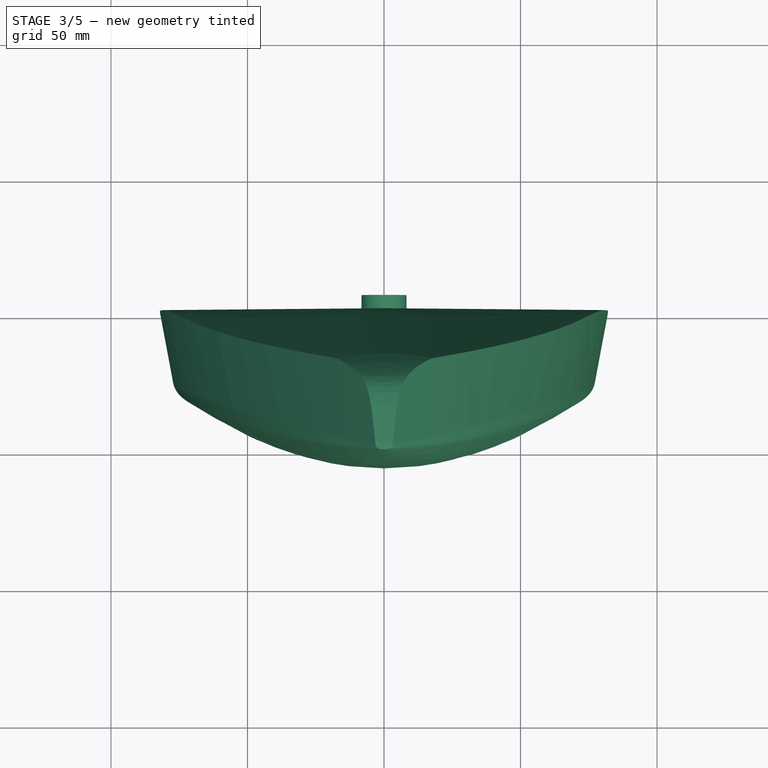
[diagram: stage 3 of 5 — top view after this stage's code; geometry added in this stage tinted green]
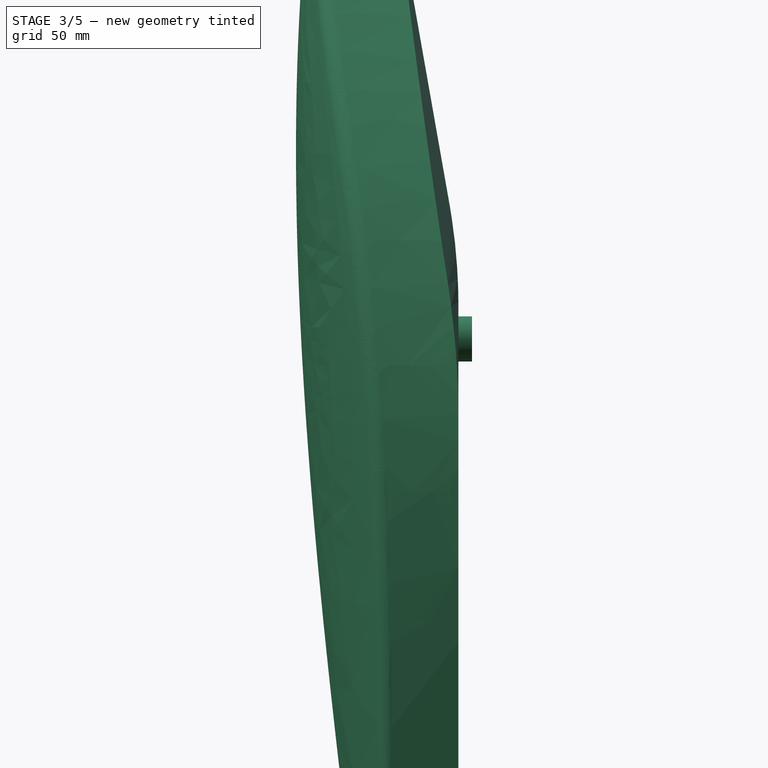
[diagram: stage 3 of 5 — right view after this stage's code; geometry added in this stage tinted green]
FEATURE [PartDesign::Body] Body007  label="Hook_Nose"
  Group = -> [Sketch017,Pad009,Fillet005]
  Origin = -> Origin007
  Placement = pos=(0,-14,300) rot=(1,0,0;0.174533rad)
  Tip = -> Fillet005
FEATURE [Sketcher::SketchObject] Sketch018
  MapMode = 5
  Placement = pos=(0,0,0) rot=(0.57735,0.57735,0.57735;2.0944rad)
  Support = -> [YZ_Plane008]
  sketch-geometry (8):
    g0: ArcOfCircle CenterX=-2 CenterY=0 CenterZ=0 NormalX=0 NormalY=0 NormalZ=1 AngleXU=0 Radius=1 StartAngle=1.5708 EndAngle=4.71239
    g1: ArcOfCircle CenterX=2 CenterY=0 CenterZ=0 NormalX=0 NormalY=0 NormalZ=1 AngleXU=0 Radius=1 StartAngle=4.71239 EndAngle=7.85398
    g2: LineSegment StartX=-2 StartY=-1 StartZ=0 EndX=2 EndY=-1 EndZ=0
    g3: LineSegment StartX=-2 StartY=1 StartZ=0 EndX=2 EndY=1 EndZ=0
    g4: ArcOfCircle CenterX=-2 CenterY=0 CenterZ=0 NormalX=0 NormalY=0 NormalZ=1 AngleXU=0 Radius=3 StartAngle=1.5708 EndAngle=4.71239
    g5: ArcOfCircle CenterX=2 CenterY=0 CenterZ=0 NormalX=0 NormalY=0 NormalZ=1 AngleXU=0 Radius=3 StartAngle=4.71239 EndAngle=7.85398
    g6: LineSegment StartX=-2 StartY=-3 StartZ=0 EndX=2 EndY=-3 EndZ=0
    g7: LineSegment StartX=-2 StartY=3 StartZ=0 EndX=2 EndY=3 EndZ=0
  constraints (18):
    c: Tangent(g0,g3) = 1.5708
    c: Tangent(g0,g2) = -1.5708
    c: Tangent(g2,g1) = -1.5708
    c: Tangent(g3,g1) = 1.5708
    c: Equal(g0,g1)
    c: PointOnObject(g0,g-1)
    c: Radius(g0) = 1
    c: Tangent(g4,g7) = 1.5708
    c: Tangent(g4,g6) = -1.5708
    c: Tangent(g6,g5) = -1.5708
    c: Tangent(g7,g5) = 1.5708
    c: Horizontal(g6)
    c: Equal(g4,g5)
    c: Coincident(g4,g0)
    c: Coincident(g5,g1)
    c: DistanceX(g0,g-1) = 2
    c: Radius(g4) = 3
    c: DistanceX(g-1,g1) = 2
FEATURE [PartDesign::Pad] Pad010
  Length = 1
  Length2 = 100
  Midplane = true
  Placement = pos=(0,0,0) rot=(0.57735,0.57735,0.57735;2.0944rad)
  Profile = -> Sketch018
  Type = 0
FEATURE [PartDesign::Fillet] Fillet006
  Base = -> Pad010 [Face5,Face2]
  BaseFeature = -> Pad010
  Placement = pos=(0,0,0) rot=(0.57735,0.57735,0.57735;2.0944rad)
  Radius = 0.4
FEATURE [PartDesign::Body] Body008  label="Hook_Left"
  Group = -> [Sketch018,Pad010,Fillet006]
  Origin = -> Origin008
  Placement = pos=(65,-1,180) rot=(0,0,1;0rad)
  Tip = -> Fillet006
FEATURE [Sketcher::SketchObject] Sketch019
  MapMode = 5
  Placement = pos=(0,0,0) rot=(0.57735,0.57735,0.57735;2.0944rad)
  Support = -> [YZ_Plane009]
  sketch-geometry (8):
    g0: ArcOfCircle CenterX=-2 CenterY=1e-16 CenterZ=0 NormalX=0 NormalY=0 NormalZ=1 AngleXU=0 Radius=1 StartAngle=1.5708 EndAngle=4.71239
    g1: ArcOfCircle CenterX=2 CenterY=1e-16 CenterZ=0 NormalX=0 NormalY=0 NormalZ=1 AngleXU=0 Radius=1 StartAngle=4.71239 EndAngle=7.85398
    g2: LineSegment StartX=-2 StartY=-1 StartZ=0 EndX=2 EndY=-1 EndZ=0
    g3: LineSegment StartX=-2 StartY=1 StartZ=0 EndX=2 EndY=1 EndZ=0
    g4: ArcOfCircle CenterX=-2 CenterY=1e-16 CenterZ=0 NormalX=0 NormalY=0 NormalZ=1 AngleXU=0 Radius=3 StartAngle=1.5708 EndAngle=4.71239
    g5: ArcOfCircle CenterX=2 CenterY=1e-16 CenterZ=0 NormalX=0 NormalY=0 NormalZ=1 AngleXU=0 Radius=3 StartAngle=4.71239 EndAngle=7.85398
    g6: LineSegment StartX=-2 StartY=-3 StartZ=0 EndX=2 EndY=-3 EndZ=0
    g7: LineSegment StartX=-2 StartY=3 StartZ=0 EndX=2 EndY=3 EndZ=0
  constraints (18):
    c: Tangent(g0,g3) = 1.5708
    c: Tangent(g0,g2) = -1.5708
    c: Tangent(g2,g1) = -1.5708
    c: Tangent(g3,g1) = 1.5708
    c: Equal(g0,g1)
    c: PointOnObject(g0,g-1)
    c: Radius(g0) = 1
    c: Tangent(g4,g7) = 1.5708
    c: Tangent(g4,g6) = -1.5708
    c: Tangent(g6,g5) = -1.5708
    c: Tangent(g7,g5) = 1.5708
    c: Horizontal(g6)
    c: Equal(g4,g5)
    c: Coincident(g4,g0)
    c: Coincident(g5,g1)
    c: DistanceX(g0,g-1) = 2
    c: Radius(g4) = 3
    c: DistanceX(g-1,g1) = 2
FEATURE [PartDesign::Pad] Pad011
  Length = 1
  Length2 = 100
  Midplane = true
  Placement = pos=(0,0,0) rot=(0.57735,0.57735,0.57735;2.0944rad)
  Profile = -> Sketch019
  Type = 0
FEATURE [PartDesign::Fillet] Fillet007
  Base = -> Pad011 [Face5,Face2]
  BaseFeature = -> Pad011
  Placement = pos=(0,0,0) rot=(0.57735,0.57735,0.57735;2.0944rad)
  Radius = 0.4
FEATURE [Sketcher::SketchObject] Sketch022
  ExternalGeometry = -> [Pad013]
  MapMode = 5
  Placement = pos=(0,-5,2.2e-15) rot=(1,0,0;1.5708rad)
  Support = -> [Pad013]
  sketch-geometry (1):
    g0: Circle CenterX=0 CenterY=195 CenterZ=0 NormalX=0 NormalY=0 NormalZ=1 AngleXU=0 Radius=7
  constraints (2):
    c: Coincident(g0,g-3)
    c: Radius(g0) = 7
FEATURE [PartDesign::Pad] Pad014
  BaseFeature = -> Pad013
  Length = 0.5
  Length2 = 100
  Placement = pos=(0,0,0) rot=(1,0,0;1.5708rad)
  Profile = -> Sketch022
  Type = 0
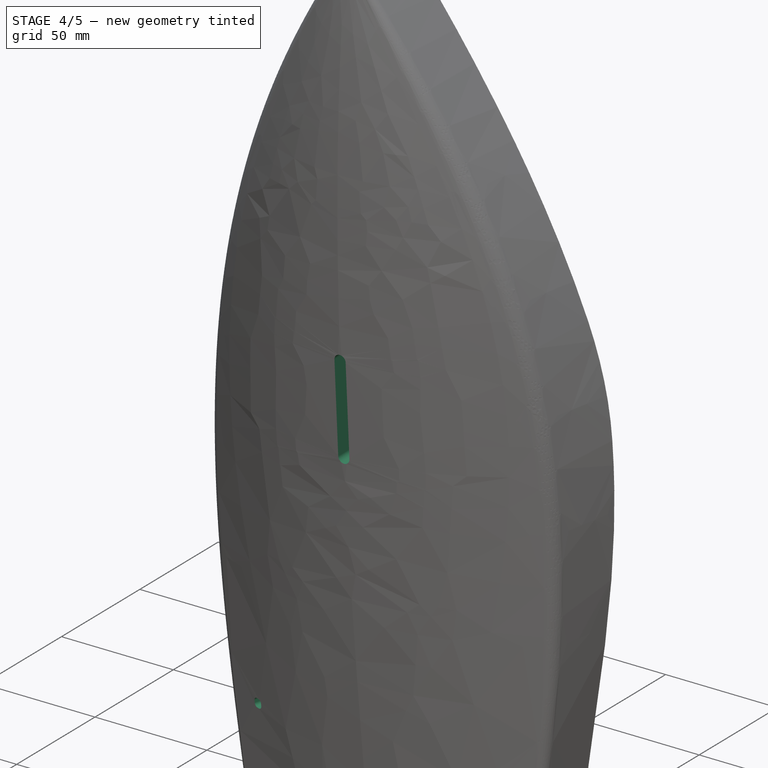
[diagram: stage 4 of 5 — iso view after this stage's code; geometry added in this stage tinted green]
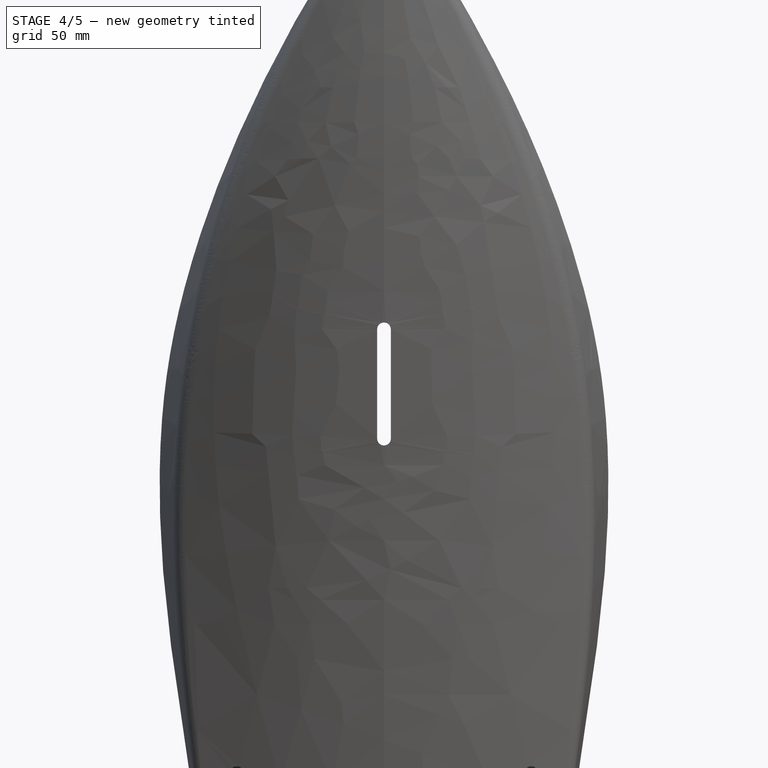
[diagram: stage 4 of 5 — front view after this stage's code; geometry added in this stage tinted green]
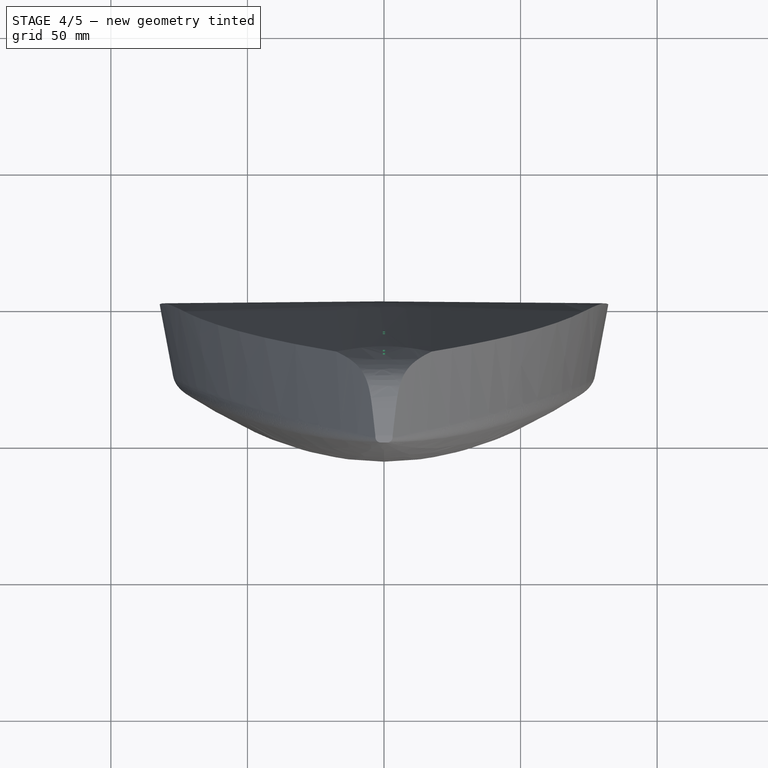
[diagram: stage 4 of 5 — top view after this stage's code; geometry added in this stage tinted green]
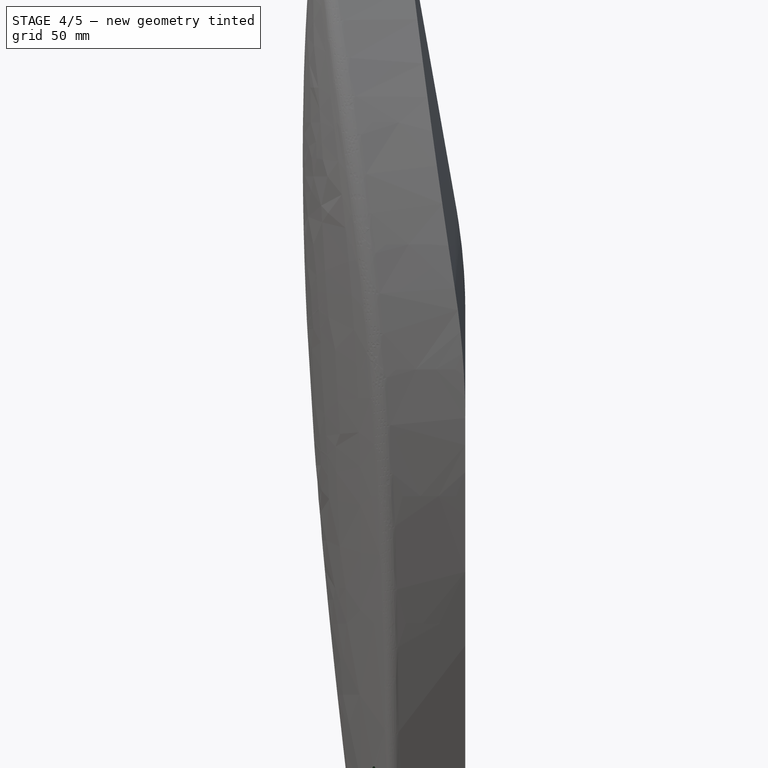
[diagram: stage 4 of 5 — right view after this stage's code; geometry added in this stage tinted green]
FEATURE [Sketcher::SketchObject] Sketch007
  AttachmentOffset = pos=(0,0,-40) rot=(0,0,1;0rad)
  MapMode = 5
  Placement = pos=(0,0,40) rot=(0,1,0;3.14159rad)
  Support = -> [XY_Plane001]
  sketch-geometry (13):
    g0: LineSegment StartX=-41.3637 StartY=21.0353 StartZ=0 EndX=-61.4599 EndY=-53.9647 EndZ=0
    g1: LineSegment StartX=-61.4599 StartY=-53.9647 StartZ=0 EndX=-57.5962 EndY=-55 EndZ=0
    g2: LineSegment StartX=-57.5962 StartY=-55 StartZ=0 EndX=-37.5 EndY=20 EndZ=0
    g3: LineSegment StartX=41.3637 StartY=21.0353 StartZ=0 EndX=61.4599 EndY=-53.9647 EndZ=0
    g4: LineSegment StartX=37.5 StartY=20 StartZ=0 EndX=57.5962 EndY=-55 EndZ=0
    g5: LineSegment StartX=57.5962 StartY=-55 StartZ=0 EndX=61.4599 EndY=-53.9647 EndZ=0
    g6: LineSegment StartX=-37.5 StartY=20 StartZ=0 EndX=0 EndY=20 EndZ=0
    g7: LineSegment StartX=37.5 StartY=20 StartZ=0 EndX=0 EndY=20 EndZ=0
    g8: LineSegment [constr] StartX=-57.5962 StartY=-55 StartZ=0 EndX=0 EndY=-55 EndZ=0
    g9: LineSegment [constr] StartX=0 StartY=-55 StartZ=0 EndX=57.5962 EndY=-55 EndZ=0
    g10: LineSegment StartX=-41.3637 StartY=21.0353 StartZ=0 EndX=41.3637 EndY=21.0353 EndZ=0
    g11: LineSegment [constr] StartX=-41.3637 StartY=21.0353 StartZ=0 EndX=-37.5 EndY=20 EndZ=0
    g12: LineSegment [constr] StartX=41.3637 StartY=21.0353 StartZ=0 EndX=37.5 EndY=20 EndZ=0
  constraints (37):
    c: Coincident(g1,g0)
    c: Coincident(g2,g1)
    c: Coincident(g4,g5)
    c: Coincident(g5,g3)
    c: Equal(g1,g5)
    c: Coincident(g6,g2)
    c: PointOnObject(g6,g-2)
    c: Coincident(g7,g6)
    c: Horizontal(g7)
    c: Horizontal(g6)
    c: Equal(g7,g6)
    c: Coincident(g8,g1)
    c: PointOnObject(g8,g-2)
    c: Coincident(g9,g8)
    c: Coincident(g9,g4)
    c: Horizontal(g9)
    c: Horizontal(g8)
    c: Equal(g8,g9)
    c: DistanceX(g2,g4) = 75
    c: DistanceY(g-1,g6) = 20
    c: DistanceY(g8,g6) = 75
    c: Coincident(g10,g0)
    c: Coincident(g10,g3)
    c: Horizontal(g10)
    c: Coincident(g11,g0)
    c: Coincident(g11,g2)
    c: Coincident(g12,g3)
    c: Coincident(g12,g4)
    c: Coincident(g7,g4)
    c: Equal(g11,g12)
    c: Perpendicular(g2,g11)
    c: Distance(g0,g2) = 4
    c: Perpendicular(g4,g5)
    c: Perpendicular(g2,g1)
    c: Equal(g1,g5)
    c: Equal(g5,g11)
    c: Angle(g2,g6) = 1.8326
FEATURE [PartDesign::Pad] Pad
  Length = 4
  Length2 = 100
  Profile = -> Sketch007
  Refine = true
  Type = 0
FEATURE [PartDesign::Fillet] Fillet002
  Base = -> Pad [Edge3,Edge4,Edge10,Edge17,Edge22,Edge21,Edge9,Edge16]
  BaseFeature = -> Pad
  Radius = 1.5
FEATURE [PartDesign::Body] Body001  label="Rudder socket"
  Group = -> [Sketch007,Pad,Fillet002]
  Origin = -> Origin001
  Tip = -> Fillet002
FEATURE [Sketcher::SketchObject] Sketch008
  AttachmentOffset = pos=(0,0,20) rot=(0,0,1;0rad)
  MapMode = 5
  Placement = pos=(0,20,4.4e-15) rot=(0,0.707107,0.707107;3.14159rad)
  Support = -> [XZ_Plane002]
  sketch-geometry (9):
    g0: LineSegment [constr] StartX=-2.5 StartY=160 StartZ=0 EndX=2.5 EndY=160 EndZ=0
    g1: LineSegment StartX=2.5 StartY=160 StartZ=0 EndX=2.5 EndY=200 EndZ=0
    g2: LineSegment [constr] StartX=2.5 StartY=200 StartZ=0 EndX=-2.5 EndY=200 EndZ=0
    g3: LineSegment StartX=-2.5 StartY=200 StartZ=0 EndX=-2.5 EndY=160 EndZ=0
    g4: LineSegment [constr] StartX=-2.5 StartY=200 StartZ=0 EndX=0 EndY=180 EndZ=0
    g5: LineSegment [constr] StartX=2.5 StartY=200 StartZ=0 EndX=0 EndY=180 EndZ=0
    g6: LineSegment [constr] StartX=0 StartY=180 StartZ=0 EndX=-2.5 EndY=160 EndZ=0
    g7: ArcOfCircle CenterX=-2e-16 CenterY=200 CenterZ=0 NormalX=0 NormalY=0 NormalZ=1 AngleXU=0 Radius=2.5 StartAngle=-4.4e-15 EndAngle=3.14159
    g8: ArcOfCircle CenterX=-1.91e-14 CenterY=160 CenterZ=0 NormalX=0 NormalY=0 NormalZ=1 AngleXU=0 Radius=2.5 StartAngle=3.14159 EndAngle=6.28319
  constraints (25):
    c: Coincident(g0,g1)
    c: Coincident(g1,g2)
    c: Coincident(g2,g3)
    c: Coincident(g3,g0)
    c: Horizontal(g0)
    c: Horizontal(g2)
    c: Vertical(g1)
    c: Vertical(g3)
    c: DistanceY(g3,g3) = 40
    c: DistanceX(g2,g2) = 5
    c: Coincident(g4,g2)
    c: PointOnObject(g4,g-2)
    c: Coincident(g5,g1)
    c: Coincident(g5,g4)
    c: Coincident(g6,g4)
    c: Coincident(g6,g0)
    c: Equal(g6,g4)
    c: Equal(g4,g5)
    c: DistanceY(g-1,g4) = 180
    c: PointOnObject(g7,g2)
    c: Coincident(g7,g3)
    c: Coincident(g7,g1)
    c: PointOnObject(g8,g0)
    c: Coincident(g8,g3)
    c: Coincident(g8,g1)
FEATURE [PartDesign::Pad] Pad001
  Length = 100
  Length2 = 100
  Placement = pos=(0,0,0) rot=(1,0,0;1.5708rad)
  Profile = -> Sketch008
  Refine = true
  Reversed = true
  Type = 0
FEATURE [PartDesign::Body] Body006  label="keel"
  Group = -> [Sketch016,Pad008]
  Origin = -> Origin006
  Tip = -> Pad008
FEATURE [Sketcher::SketchObject] Sketch017
  MapMode = 5
  Placement = pos=(0,0,0) rot=(0.57735,0.57735,0.57735;2.0944rad)
  Support = -> [YZ_Plane007]
  sketch-geometry (8):
    g0: ArcOfCircle CenterX=-2 CenterY=0 CenterZ=0 NormalX=0 NormalY=0 NormalZ=1 AngleXU=0 Radius=1 StartAngle=1.5708 EndAngle=4.71239
    g1: ArcOfCircle CenterX=2 CenterY=0 CenterZ=0 NormalX=0 NormalY=0 NormalZ=1 AngleXU=0 Radius=1 StartAngle=4.71239 EndAngle=7.85398
    g2: LineSegment StartX=-2 StartY=-1 StartZ=0 EndX=2 EndY=-1 EndZ=0
    g3: LineSegment StartX=-2 StartY=1 StartZ=0 EndX=2 EndY=1 EndZ=0
    g4: ArcOfCircle CenterX=-2 CenterY=0 CenterZ=0 NormalX=0 NormalY=0 NormalZ=1 AngleXU=0 Radius=3 StartAngle=1.5708 EndAngle=4.71239
    g5: ArcOfCircle CenterX=2 CenterY=0 CenterZ=0 NormalX=0 NormalY=0 NormalZ=1 AngleXU=0 Radius=3 StartAngle=4.71239 EndAngle=7.85398
    g6: LineSegment StartX=-2 StartY=-3 StartZ=0 EndX=2 EndY=-3 EndZ=0
    g7: LineSegment StartX=-2 StartY=3 StartZ=0 EndX=2 EndY=3 EndZ=0
  constraints (18):
    c: Tangent(g0,g3) = 1.5708
    c: Tangent(g0,g2) = -1.5708
    c: Tangent(g2,g1) = -1.5708
    c: Tangent(g3,g1) = 1.5708
    c: Equal(g0,g1)
    c: PointOnObject(g0,g-1)
    c: Radius(g0) = 1
    c: Tangent(g4,g7) = 1.5708
    c: Tangent(g4,g6) = -1.5708
    c: Tangent(g6,g5) = -1.5708
    c: Tangent(g7,g5) = 1.5708
    c: Horizontal(g6)
    c: Equal(g4,g5)
    c: Coincident(g4,g0)
    c: Coincident(g5,g1)
    c: DistanceX(g0,g-1) = 2
    c: Radius(g4) = 3
    c: DistanceX(g-1,g1) = 2
FEATURE [PartDesign::Pad] Pad009
  Length = 1
  Length2 = 100
  Midplane = true
  Placement = pos=(0,0,0) rot=(0.57735,0.57735,0.57735;2.0944rad)
  Profile = -> Sketch017
  Type = 0
FEATURE [PartDesign::Fillet] Fillet005
  Base = -> Pad009 [Face5,Face2]
  BaseFeature = -> Pad009
  Placement = pos=(0,0,0) rot=(0.57735,0.57735,0.57735;2.0944rad)
  Radius = 0.4
FEATURE [PartDesign::Body] Body014  label="Cavity"
  Group = -> [Sketch033,Pad015,Sketch034,Pad016,Sketch035,Pocket002,Sketch039,Pad018]
  Origin = -> Origin037
  Tip = -> Pad018
FEATURE [PartDesign::Boolean] Boolean
  BaseFeature = -> Pocket004
  Group = -> [Body014,Body001,Body002,Body007,Body008,Body009,Body011,Body015]
  Type = 1
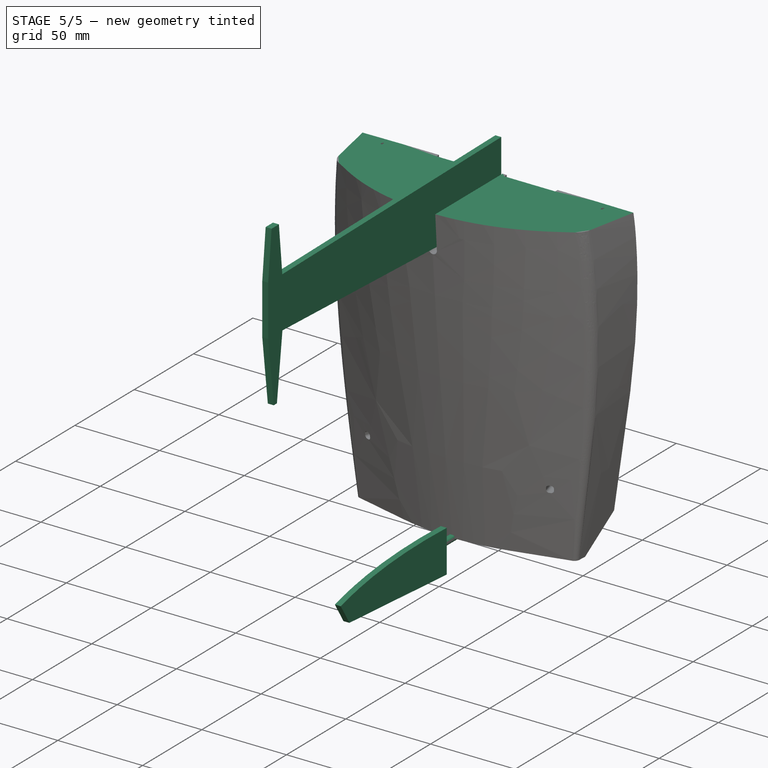
[diagram: stage 5 of 5 — iso view after this stage's code; geometry added in this stage tinted green]
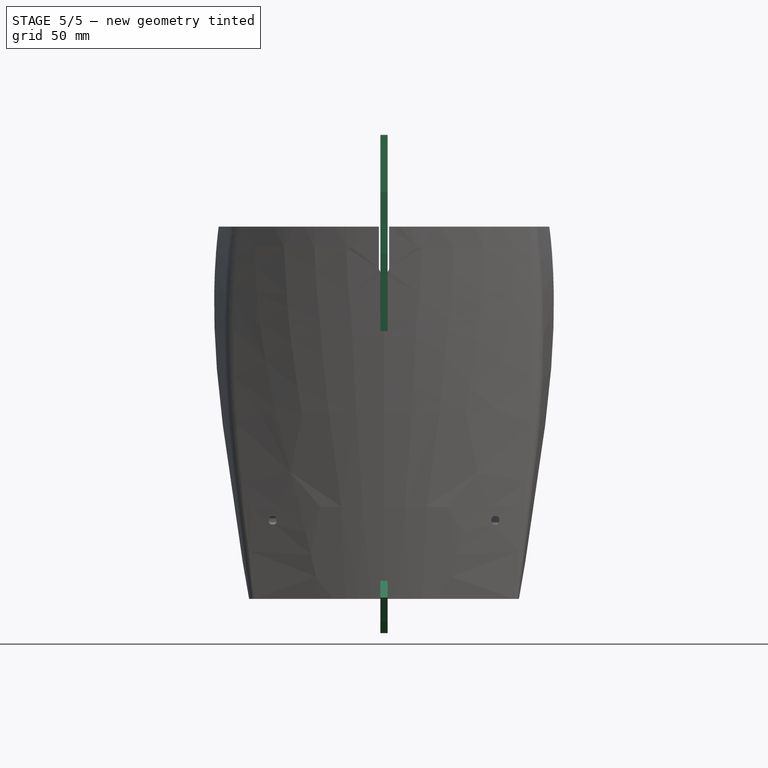
[diagram: stage 5 of 5 — front view after this stage's code; geometry added in this stage tinted green]
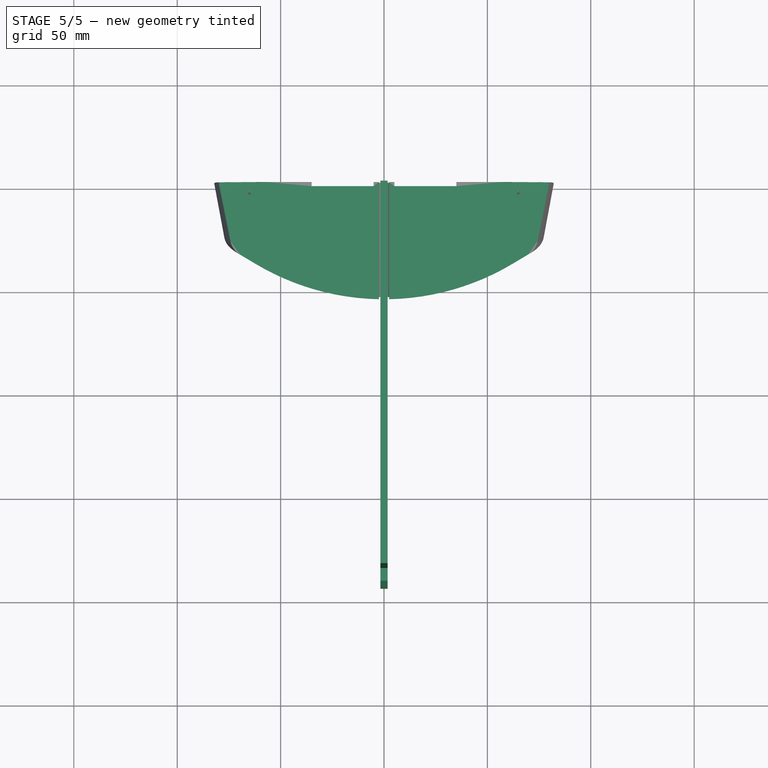
[diagram: stage 5 of 5 — top view after this stage's code; geometry added in this stage tinted green]
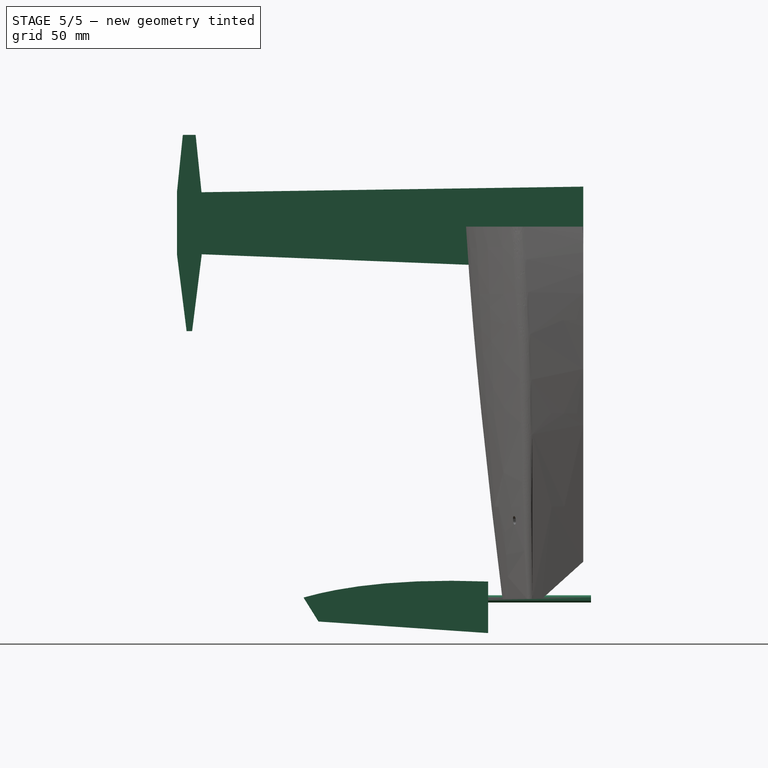
[diagram: stage 5 of 5 — right view after this stage's code; geometry added in this stage tinted green]
FEATURE [PartDesign::Body] Body002  label="Kiel slot"
  Group = -> [Sketch008,Pad001]
  Origin = -> Origin002
  Tip = -> Pad001
FEATURE [Sketcher::SketchObject] Sketch014
  MapMode = 5
  Placement = pos=(0,0,0) rot=(0.57735,0.57735,0.57735;2.0944rad)
  Support = -> [YZ_Plane004]
  sketch-geometry (15):
    g0: LineSegment StartX=-45.9859 StartY=1.75 StartZ=0 EndX=3.75948 EndY=1.75 EndZ=0
    g1: LineSegment StartX=3.75948 StartY=1.75 StartZ=0 EndX=3.75948 EndY=-1.75 EndZ=0
    g2: LineSegment StartX=3.75948 StartY=-1.75 StartZ=0 EndX=-45.9859 EndY=-1.75 EndZ=0
    g3: LineSegment StartX=-45.9859 StartY=-1.75 StartZ=0 EndX=-45.9859 EndY=-16.5451 EndZ=0
    g4: LineSegment StartX=-45.9859 StartY=-16.5451 StartZ=0 EndX=-128.068 EndY=-10.9478 EndZ=0
    g5: LineSegment StartX=-128.068 StartY=-10.9478 StartZ=0 EndX=-135.299 EndY=0.650295 EndZ=0
    g6: LineSegment StartX=-45.9859 StartY=8.39034 StartZ=0 EndX=-45.9859 EndY=1.75 EndZ=0
    g7: LineSegment [constr] StartX=-45.9859 StartY=1.75 StartZ=0 EndX=0 EndY=-2e-16 EndZ=0
    g8: LineSegment [constr] StartX=0 StartY=0 StartZ=0 EndX=-45.9859 EndY=-1.75 EndZ=0
    g9: Circle [constr] CenterX=-45.9859 CenterY=8.39034 CenterZ=0 NormalX=0 NormalY=0 NormalZ=1 AngleXU=0 Radius=8
    g10: Circle [constr] CenterX=-100.593 CenterY=10.4922 CenterZ=0 NormalX=0 NormalY=0 NormalZ=1 AngleXU=0 Radius=8
    g11: Circle [constr] CenterX=-135.299 CenterY=0.650295 CenterZ=0 NormalX=0 NormalY=0 NormalZ=1 AngleXU=0 Radius=8
    g12: BSplineCurve PolesCount=3 KnotsCount=2 Degree=2 IsPeriodic=0
    g13: GeomPoint [constr] X=-45.9859 Y=8.39034 Z=0
    g14: GeomPoint [constr] X=-135.299 Y=0.650295 Z=0
  constraints (28):
    c: Horizontal(g0)
    c: Coincident(g0,g1)
    c: Coincident(g1,g2)
    c: Horizontal(g2)
    c: Coincident(g2,g3)
    c: Vertical(g3)
    c: Coincident(g3,g4)
    c: Coincident(g4,g5)
    c: Coincident(g6,g0)
    c: Vertical(g6)
    c: Equal(g0,g2)
    c: Vertical(g1)
    c: Coincident(g7,g0)
    c: Coincident(g7,g-1)
    c: Coincident(g8,g-1)
    c: Coincident(g8,g2)
    c: Equal(g7,g8)
    c: DistanceY(g1,g1) = 3.5
    c: Coincident(g12,g6)
    c: Radius(g9) = 8
    c: Equal(g9,g10)
    c: Equal(g9,g11)
    c: Coincident(g12,g5)
    c: InternalAlignment(g9,g12)
    c: InternalAlignment(g10,g12)
    c: InternalAlignment(g11,g12)
    c: InternalAlignment(g13,g12)
    c: InternalAlignment(g14,g12)
FEATURE [PartDesign::Pad] Pad006
  Length = 3.5
  Length2 = 100
  Midplane = true
  Placement = pos=(0,0,0) rot=(0.57735,0.57735,0.57735;2.0944rad)
  Profile = -> Sketch014
  Type = 0
FEATURE [PartDesign::Fillet] Fillet003
  Base = -> Pad006 [Edge10,Edge9,Edge3,Edge4]
  BaseFeature = -> Pad006
  Placement = pos=(0,0,0) rot=(0.57735,0.57735,0.57735;2.0944rad)
  Radius = 1.25
FEATURE [PartDesign::Body] Body004  label="Rudder blade"
  Group = -> [Sketch014,Pad006,Fillet003]
  Origin = -> Origin004
  Placement = pos=(43.5,5,38) rot=(0,0,1;0.261799rad)
  Tip = -> Fillet003
FEATURE [Sketcher::SketchObject] Sketch015
  MapMode = 5
  Placement = pos=(0,0,0) rot=(0.57735,0.57735,0.57735;2.0944rad)
  Support = -> [YZ_Plane005]
  sketch-geometry (15):
    g0: LineSegment StartX=-45.9859 StartY=1.75 StartZ=0 EndX=3.75948 EndY=1.75 EndZ=0
    g1: LineSegment StartX=3.75948 StartY=1.75 StartZ=0 EndX=3.75948 EndY=-1.75 EndZ=0
    g2: LineSegment StartX=3.75948 StartY=-1.75 StartZ=0 EndX=-45.9859 EndY=-1.75 EndZ=0
    g3: LineSegment StartX=-45.9859 StartY=-1.75 StartZ=0 EndX=-45.9859 EndY=-16.5451 EndZ=0
    g4: LineSegment StartX=-45.9859 StartY=-16.5451 StartZ=0 EndX=-128.068 EndY=-10.9478 EndZ=0
    g5: LineSegment StartX=-128.068 StartY=-10.9478 StartZ=0 EndX=-135.299 EndY=0.650295 EndZ=0
    g6: LineSegment StartX=-45.9859 StartY=8.39034 StartZ=0 EndX=-45.9859 EndY=1.75 EndZ=0
    g7: LineSegment [constr] StartX=-45.9859 StartY=1.75 StartZ=0 EndX=0 EndY=-2e-16 EndZ=0
    g8: LineSegment [constr] StartX=0 StartY=0 StartZ=0 EndX=-45.9859 EndY=-1.75 EndZ=0
    g9: Circle [constr] CenterX=-45.9859 CenterY=8.39034 CenterZ=0 NormalX=0 NormalY=0 NormalZ=1 AngleXU=0 Radius=8
    g10: Circle [constr] CenterX=-100.593 CenterY=10.4922 CenterZ=0 NormalX=0 NormalY=0 NormalZ=1 AngleXU=0 Radius=8
    g11: Circle [constr] CenterX=-135.299 CenterY=0.650295 CenterZ=0 NormalX=0 NormalY=0 NormalZ=1 AngleXU=0 Radius=8
    g12: BSplineCurve PolesCount=3 KnotsCount=2 Degree=2 IsPeriodic=0
    g13: GeomPoint [constr] X=-45.9859 Y=8.39034 Z=0
    g14: GeomPoint [constr] X=-135.299 Y=0.650295 Z=0
  constraints (28):
    c: Horizontal(g0)
    c: Coincident(g0,g1)
    c: Coincident(g1,g2)
    c: Horizontal(g2)
    c: Coincident(g2,g3)
    c: Vertical(g3)
    c: Coincident(g3,g4)
    c: Coincident(g4,g5)
    c: Coincident(g6,g0)
    c: Vertical(g6)
    c: Equal(g0,g2)
    c: Vertical(g1)
    c: Coincident(g7,g0)
    c: Coincident(g7,g-1)
    c: Coincident(g8,g-1)
    c: Coincident(g8,g2)
    c: Equal(g7,g8)
    c: DistanceY(g1,g1) = 3.5
    c: Coincident(g12,g6)
    c: Radius(g9) = 8
    c: Equal(g9,g10)
    c: Equal(g9,g11)
    c: Coincident(g12,g5)
    c: InternalAlignment(g9,g12)
    c: InternalAlignment(g10,g12)
    c: InternalAlignment(g11,g12)
    c: InternalAlignment(g13,g12)
    c: InternalAlignment(g14,g12)
FEATURE [PartDesign::Pad] Pad007
  Length = 3.5
  Length2 = 100
  Midplane = true
  Placement = pos=(0,0,0) rot=(0.57735,0.57735,0.57735;2.0944rad)
  Profile = -> Sketch015
  Type = 0
FEATURE [PartDesign::Fillet] Fillet004
  Base = -> Pad007 [Edge10,Edge9,Edge3,Edge4]
  BaseFeature = -> Pad007
  Placement = pos=(0,0,0) rot=(0.57735,0.57735,0.57735;2.0944rad)
  Radius = 1.25
FEATURE [PartDesign::Body] Body005  label="Rudder blade001"
  Group = -> [Sketch015,Pad007,Fillet004]
  Origin = -> Origin005
  Placement = pos=(-43.5,5,38) rot=(0,0,-1;0.261799rad)
  Tip = -> Fillet004
FEATURE [Sketcher::SketchObject] Sketch016
  MapMode = 5
  Placement = pos=(0,0,0) rot=(0.57735,0.57735,0.57735;2.0944rad)
  Support = -> [YZ_Plane006]
  sketch-geometry (12):
    g0: LineSegment StartX=0 StartY=199.364 StartZ=0 EndX=-184.627 EndY=196.657 EndZ=0
    g1: LineSegment StartX=0 StartY=159.364 StartZ=0 EndX=-184.503 EndY=166.657 EndZ=0
    g2: LineSegment StartX=0 StartY=199.364 StartZ=0 EndX=0 EndY=159.364 EndZ=0
    g3: LineSegment StartX=-184.627 StartY=196.657 StartZ=0 EndX=-187.471 EndY=224.378 EndZ=0
    g4: LineSegment StartX=-187.471 StartY=224.378 StartZ=0 EndX=-193.659 EndY=224.378 EndZ=0
    g5: LineSegment StartX=-193.659 StartY=224.378 StartZ=0 EndX=-196.503 EndY=196.657 EndZ=0
    g6: LineSegment StartX=-196.503 StartY=196.657 StartZ=0 EndX=-196.503 EndY=166.657 EndZ=0
    g7: LineSegment StartX=-196.503 StartY=166.657 StartZ=0 EndX=-191.837 EndY=129.496 EndZ=0
    g8: LineSegment StartX=-191.837 StartY=129.496 StartZ=0 EndX=-189.169 EndY=129.496 EndZ=0
    g9: LineSegment StartX=-189.169 StartY=129.496 StartZ=0 EndX=-184.503 EndY=166.657 EndZ=0
    g10: LineSegment [constr] StartX=-196.503 StartY=196.657 StartZ=0 EndX=-184.627 EndY=196.657 EndZ=0
    g11: LineSegment [constr] StartX=-184.503 StartY=166.657 StartZ=0 EndX=-196.503 EndY=166.657 EndZ=0
  constraints (27):
    c: PointOnObject(g0,g-2)
    c: PointOnObject(g1,g-2)
    c: Coincident(g2,g0)
    c: Coincident(g2,g1)
    c: DistanceY(g2,g2) = 40
    c: Equal(g0,g1)
    c: DistanceY(g1,g0) = 30
    c: Coincident(g3,g0)
    c: Coincident(g4,g3)
    c: Coincident(g5,g4)
    c: Coincident(g6,g5)
    c: Vertical(g6)
    c: Coincident(g7,g6)
    c: Coincident(g8,g7)
    c: Horizontal(g8)
    c: Coincident(g9,g8)
    c: Coincident(g9,g1)
    c: DistanceX(g6,g1) = 12
    c: Equal(g5,g3)
    c: Equal(g7,g9)
    c: Horizontal(g4)
    c: Coincident(g10,g5)
    c: Coincident(g10,g0)
    c: Horizontal(g10)
    c: Coincident(g11,g1)
    c: Coincident(g11,g6)
    c: Horizontal(g11)
FEATURE [PartDesign::Pad] Pad008
  Length = 3.5
  Length2 = 100
  Midplane = true
  Placement = pos=(0,0,0) rot=(0.57735,0.57735,0.57735;2.0944rad)
  Profile = -> Sketch016
  Type = 0
FEATURE [Sketcher::SketchObject] Sketch040
  MapMode = 5
  Placement = pos=(0,0,0) rot=(1,0,0;1.5708rad)
  Support = -> [XZ_Plane]
  sketch-geometry (4):
    g0: LineSegment StartX=-96.932 StartY=413.484 StartZ=0 EndX=157.408 EndY=413.484 EndZ=0
    g1: LineSegment StartX=157.408 StartY=413.484 StartZ=0 EndX=157.408 EndY=180 EndZ=0
    g2: LineSegment StartX=-96.932 StartY=180 StartZ=0 EndX=-96.932 EndY=413.484 EndZ=0
    g3: LineSegment StartX=-96.932 StartY=180 StartZ=0 EndX=157.408 EndY=180 EndZ=0
  constraints (9):
    c: Coincident(g0,g1)
    c: Coincident(g2,g0)
    c: Horizontal(g0)
    c: Vertical(g1)
    c: Vertical(g2)
    c: Horizontal(g3)
    c: Coincident(g3,g1)
    c: Coincident(g3,g2)
    c: DistanceY(g-1,g2) = 180
FEATURE [PartDesign::Pocket] Pocket005
  BaseFeature = -> Boolean
  Length = 10
  Length2 = 100
  Profile = -> Sketch040
  Reversed = true
  Type = 1
FEATURE [PartDesign::Body] Body
  Group = -> [Sketch,Sketch001,Sketch002,Sketch003,Sketch004,AdditiveLoft,Sketch005,Pocket,Fillet,Sketch036,Sketch037,Pocket003,Pocket004,Boolean,Sketch040,Pocket005]
  Origin = -> Origin
  Tip = -> Pocket005
FEATURE [Part::Feature] Part__Feature021  label="SOLID012"
  shape: bbox 5 x 7.62 x 9.3 mm, 85 faces (baked)
FEATURE [App::Part] PinHeader_1x03_P2_54mm_Vertical_SMD_Pin1Left004  label="PinHeader_1x03_P2.54mm_Vertical_SMD_Pin1Left004"
  Group = -> [Part__Feature021]
  Origin = -> Origin040
  Placement = pos=(0,-115,-0.35) rot=(0.707107,0.707107,0;3.14159rad)
FEATURE [Part::Feature] Part__Feature022  label="COMPOUND008"
  shape: bbox 38.51 x 31.32 x 13.44 mm, 226 faces, 2 solids (baked)
FEATURE [App::Part] servo_micro001
  Group = -> [Part__Feature022]
  Origin = -> Origin041
  Placement = pos=(26.08,-127,-17.35) rot=(-0.57735,0.57735,0.57735;4.18879rad)
FEATURE [Part::Feature] Part__Feature023  label="SOLID013"
  shape: bbox 65 x 18 x 36 mm, 6 faces (baked)
FEATURE [App::Part] batt_2x_18650007  label="batt_2x_18657"
  Group = -> [Part__Feature023]
  Origin = -> Origin042
  Placement = pos=(-20,-40,-0.05) rot=(0,0,1;1.5708rad)
FEATURE [Part::Feature] Part__Feature024  label="SOLID014"
  shape: bbox 65 x 18 x 36 mm, 6 faces (baked)
FEATURE [App::Part] batt_2x_18650008  label="batt_2x_18658"
  Group = -> [Part__Feature024]
  Origin = -> Origin043
  Placement = pos=(20,-40,-0.05) rot=(0,0,1;1.5708rad)
FEATURE [Part::Feature] Part__Feature025  label="SOLID015"
  shape: bbox 5 x 7.62 x 9.3 mm, 85 faces (baked)
FEATURE [App::Part] PinHeader_1x03_P2_54mm_Vertical_SMD_Pin1Left005  label="PinHeader_1x03_P2.54mm_Vertical_SMD_Pin1Left005"
  Group = -> [Part__Feature025]
  Origin = -> Origin044
  Placement = pos=(-3.7e-15,-85,-0.35) rot=(0.707107,0.707107,0;3.14159rad)
FEATURE [Part::Feature] Part__Feature026  label="COMPOUND009"
  shape: bbox 87.25 x 20.4 x 45.95 mm, 595 faces, 12 solids (baked)
FEATURE [App::Part] servo_standard003
  Group = -> [Part__Feature026]
  Origin = -> Origin045
  Placement = pos=(-1.2e-15,-65,19.65) rot=(0,0,1;1.5708rad)
FEATURE [Part::Feature] Part__Feature027  label="COMPOUND010"
  shape: bbox 70 x 175 x 1.6 mm, 48 faces (baked)
FEATURE [App::Part] Open_CASCADE_STEP_translator_6_9_1004  label="Open CASCADE STEP translator 6.9 005"
  Group = -> [PinHeader_1x03_P2_54mm_Vertical_SMD_Pin1Left004,servo_micro001,batt_2x_18650007,batt_2x_18650008,PinHeader_1x03_P2_54mm_Vertical_SMD_Pin1Left005,servo_standard003,Part__Feature027]
  Origin = -> Origin046
FEATURE [App::Part] Part002
  Group = -> [Open_CASCADE_STEP_translator_6_9_1004]
  Origin = -> Origin047
  Placement = pos=(0,1.6,0) rot=(1,0,0;1.5708rad)
FEATURE [App::Part] Part
  Group = -> [Part002]
  Origin = -> Origin019
  Placement = pos=(0,0,180) rot=(0,0,1;3.14159rad)
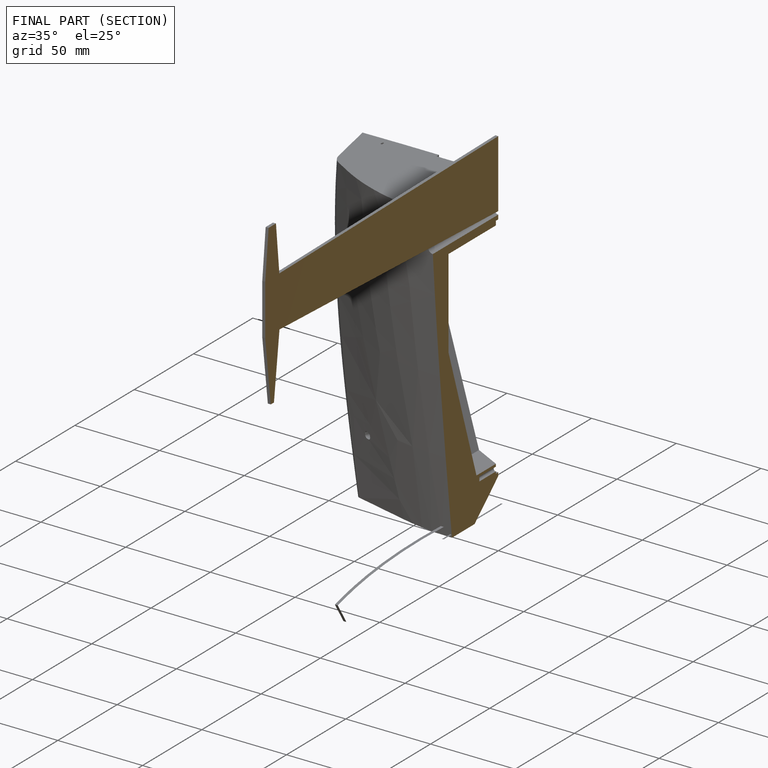
[diagram: finished part — half-section view (interior)]
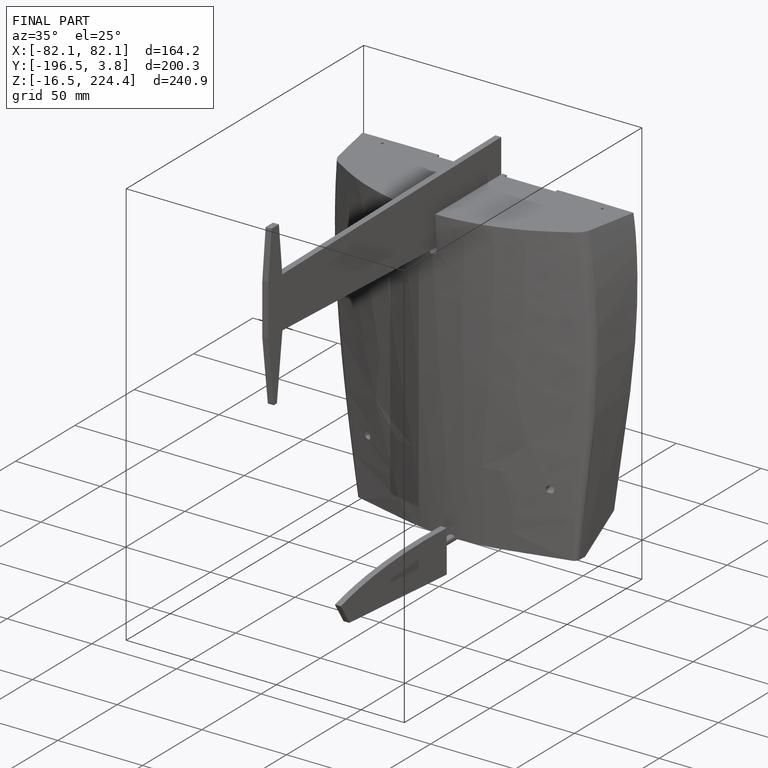
[diagram: finished part — iso view with bounding-box wireframe]
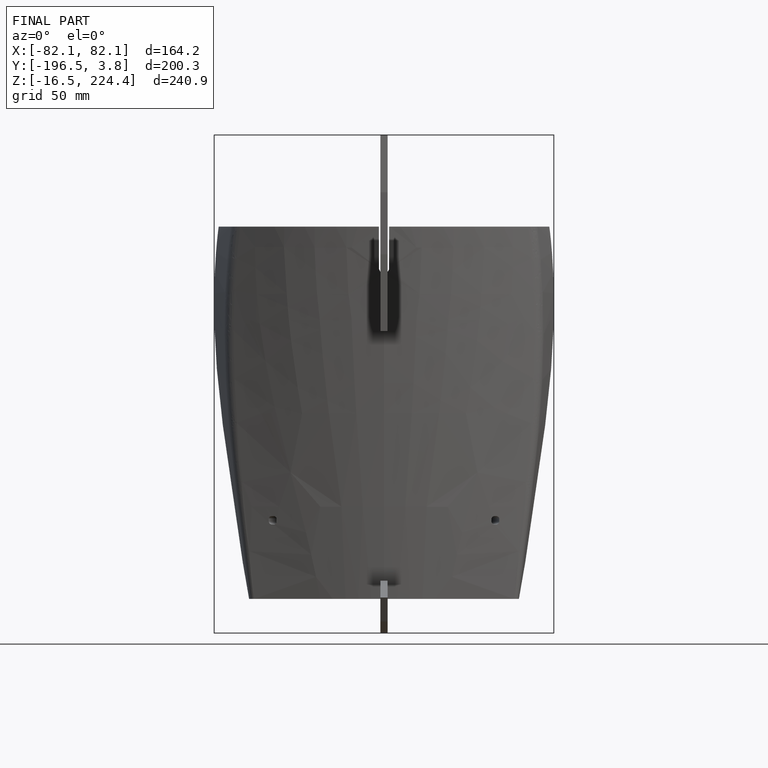
[diagram: finished part — front view with bounding-box wireframe]
